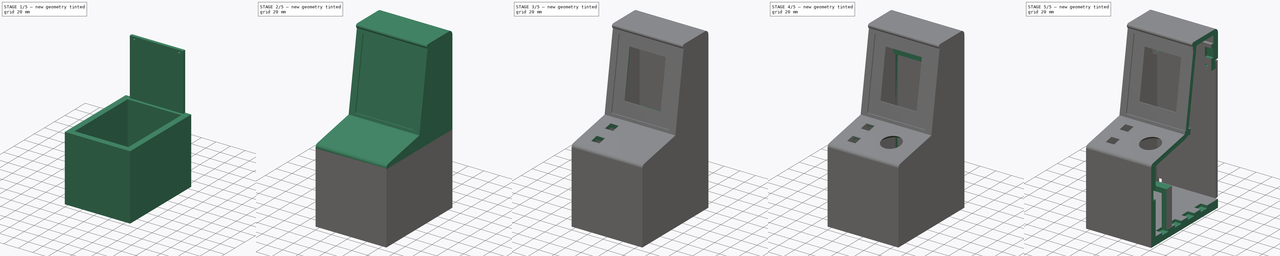
[diagram: build sequence overview — one tinted view per stage of 5, left to right]
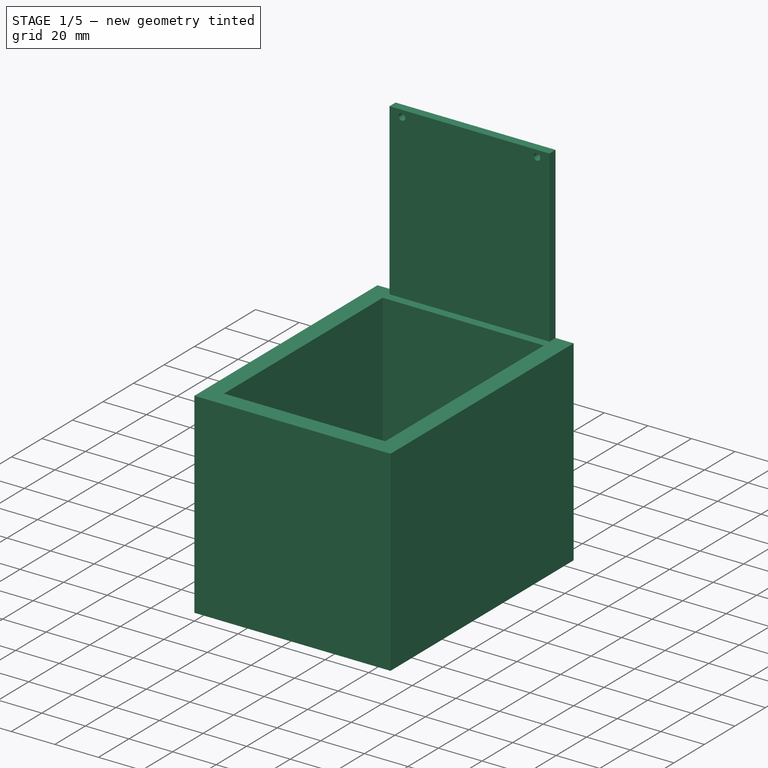
[diagram: stage 1 of 5 — iso view after this stage's code; geometry added in this stage tinted green]
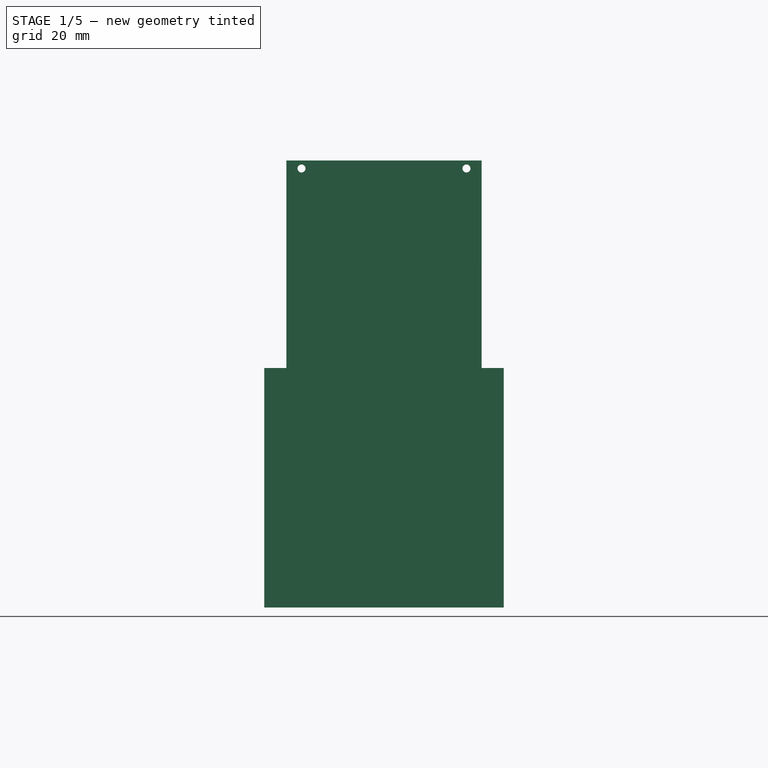
[diagram: stage 1 of 5 — front view after this stage's code; geometry added in this stage tinted green]
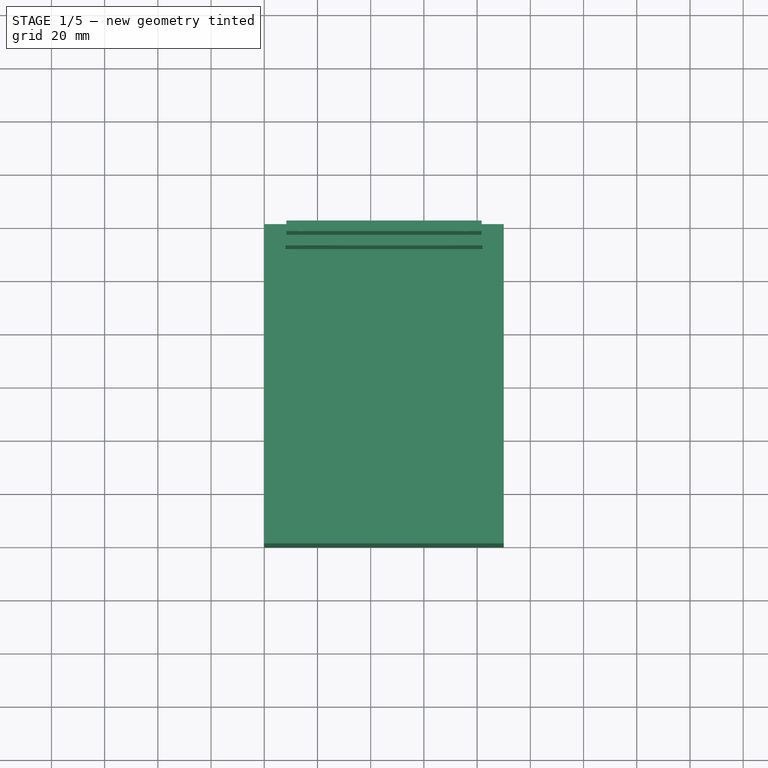
[diagram: stage 1 of 5 — top view after this stage's code; geometry added in this stage tinted green]
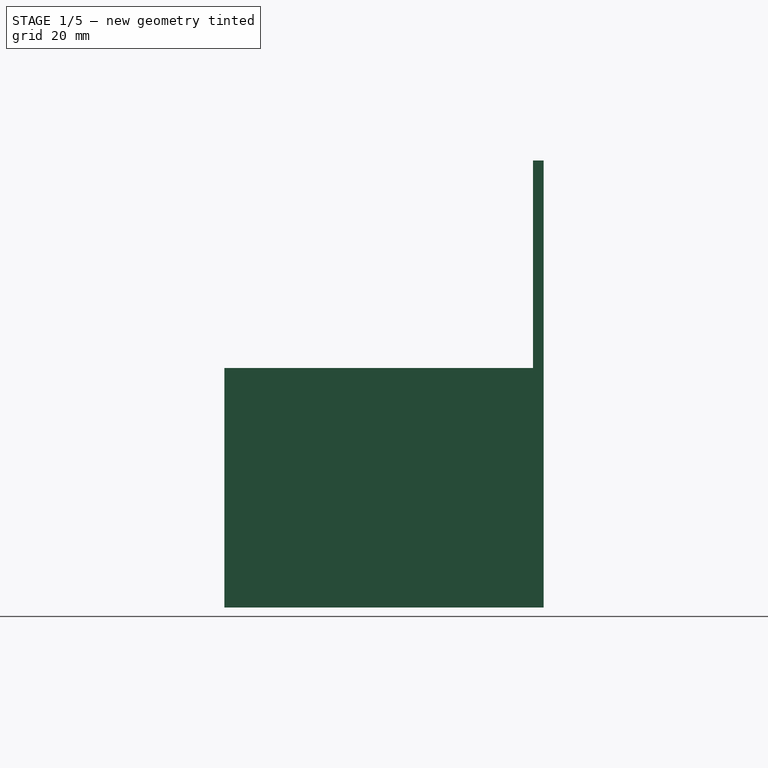
[diagram: stage 1 of 5 — right view after this stage's code; geometry added in this stage tinted green]
FCSTD DOCUMENT  (FreeCAD 0.21R33771 (Git))
Label: ArcadeMachineBaseModel
License: All rights reserved
LicenseURL: https://en.wikipedia.org/wiki/All_rights_reserved
objects: Sketcher::SketchObject×24, PartDesign::Pocket×16, PartDesign::Pad×7, PartDesign::Body×3, PartDesign::Plane×2, Spreadsheet::Sheet×1
note: 75 computed .brp shape members not serialized (recipe doc carries the construction recipe); baked Part::Feature solids carry a one-line shape summary decoded from their .brp

FEATURE [Spreadsheet::Sheet] Spreadsheet
  cells = A2='Base; B2='Value; C2='Offset; A3='Width; B3(BaseWidth)==58 + C3 + SupportBaseWidth * 2; C3=4; A4='Length; B4(BaseLength)==92 + C4; C4=12; A5='Height; B5(BaseHeight)=10; E5=0; A6='Wall; A7='Width; B7(WallWidth)=8; A8='Height; B8(WallHeight)=80; A9='Support; A10='BaseWidth; B10(SupportBaseWidth)=6; A11='BaseLength; B11(SupportBaseLength)=10; A12='TopHeight; B12(SupportTopHeight)=6; A13='Offset; B13(SupportOffset)=0.4; A14='Height; B14(SupportHeight)=40; A18='Parts; A19='Lenght; B19(PartsLength)==BaseLength * 1 / 2; A20='SecondTopLength; B20(PartsSecondTopLength)==BaseLength - PartsLength + WallWidth - 15; A21='SlideHeight; B21(PartsSlideHeight)=10; A22='TopHeight; B22(PartsTopHeight)=6; A26='Joystick; A27='Level; B27(JoyStickLevel)=20; A28='Diameter; B28(JoystickDiameter)=24; A30='Screen; A31='Width; B31(ScreenWidth)=56.4; A32='Height; B32(ScreenHeight)=86; A33='Length; B33(ScreenLength)=5.5; A34='BottomLength; B34(ScreenBottomLength)=1.5; A35='TopOffset; B35(ScreenTopOffset)=8.1; A36='BaseHeight; B36(ScreenBaseHeight)=73.2; A37='BaseWidth; B37(ScreenBaseWidth)=50; A38='RealWidth; B38(ScreenRealWidth)=46; A39='RealLength; B39(ScreenRealLength)=60; A40='RealOffset; B40(ScreenRealOffset)=2.2; A41='Offset; B41(ScreenOffset)=0.3; A42='FromWall; B42(ScreenFromWall)=10; A45='ScreenSupport; A46='Width; B46(ScreenSupportWidth)=4; A47='Height; B47(ScreenSupportHeight)=6; A49='Button; A50='Width; B50(ButtonWidth)=12; A51='TopHeight; B51(ButtonTopHeight)==2 - ButtonOffset; A52='Height; B52(BorderHeight)=3; A53='Border; B53(ButtonBorder)=1; A54='Offset; B54(ButtonOffset)=0.2; A55='PinOffset; B55(ButtonPinOffset)=3; A56='Lower; A57='SideOffset; B57(LowerSideOffset)=15; A58='Bolts; A59='Diameter; B59(BoltsDiameter)=3
FEATURE [Sketcher::SketchObject] Sketch001
  FullyConstrained = true
  MapMode = 5
  Support = -> [XY_Plane]
  expr: Constraints[12] = Spreadsheet.BaseLength
  expr: Constraints[17] = Spreadsheet.WallWidth
  expr: Constraints[19] = Spreadsheet.WallWidth
  expr: Constraints[21] = Spreadsheet.WallWidth
  expr: Constraints[22] = Spreadsheet.WallWidth
  expr: Constraints[2] = Spreadsheet.BaseWidth
  sketch-geometry (8):
    g0: LineSegment StartX=0 StartY=0 StartZ=0 EndX=90 EndY=0 EndZ=0
    g1: LineSegment StartX=8 StartY=-8 StartZ=0 EndX=82 EndY=-8 EndZ=0
    g2: LineSegment StartX=8 StartY=-8 StartZ=0 EndX=8 EndY=-112 EndZ=0
    g3: LineSegment StartX=82 StartY=-8 StartZ=0 EndX=82 EndY=-112 EndZ=0
    g4: LineSegment StartX=8 StartY=-112 StartZ=0 EndX=82 EndY=-112 EndZ=0
    g5: LineSegment StartX=0 StartY=0 StartZ=0 EndX=0 EndY=-120 EndZ=0
    g6: LineSegment StartX=0 StartY=-120 StartZ=0 EndX=90 EndY=-120 EndZ=0
    g7: LineSegment StartX=90 StartY=0 StartZ=0 EndX=90 EndY=-120 EndZ=0
  constraints (23):
    c: Horizontal(g0)
    c: Horizontal(g1)
    c: DistanceX(g1,g1) = 74
    c: Coincident(g2,g1)
    c: Vertical(g2)
    c: Coincident(g3,g1)
    c: Vertical(g3)
    c: Coincident(g4,g2)
    c: Coincident(g4,g3)
    c: Horizontal(g4)
    c: Coincident(g5,g0)
    c: Vertical(g5)
    c: DistanceY(g3,g3) = 104
    c: Horizontal(g6)
    c: Coincident(g7,g0)
    c: Coincident(g7,g6)
    c: Vertical(g7)
    c: Distance(g2,g6) = 8
    c: Coincident(g5,g6)
    c: Distance(g1,g7) = 8
    c: Coincident(g-1,g0)
    c: Distance(g1,g0) = 8
    c: Distance(g1,g5) = 8
FEATURE [PartDesign::Pad] Pad  label="Base"
  Direction = (0,0,1)
  Length = 10
  Length2 = 10
  Profile = -> Sketch001
  ReferenceAxis = -> Sketch001 [N_Axis]
  Type = 0
  expr: Length = Spreadsheet.BaseHeight
FEATURE [Sketcher::SketchObject] Sketch
  FullyConstrained = true
  MapMode = 5
  Placement = pos=(0,0,10) rot=(0,0,1;0rad)
  Support = -> [Pad]
  expr: Constraints[17] = Spreadsheet.WallWidth
  expr: Constraints[18] = Spreadsheet.BaseWidth
  expr: Constraints[19] = Spreadsheet.WallWidth
  expr: Constraints[20] = Spreadsheet.WallWidth
  expr: Constraints[21] = Spreadsheet.BaseLength
  expr: Constraints[22] = Spreadsheet.WallWidth
  sketch-geometry (8):
    g0: LineSegment StartX=0 StartY=0 StartZ=0 EndX=90 EndY=0 EndZ=0
    g1: LineSegment StartX=90 StartY=0 StartZ=0 EndX=90 EndY=-120 EndZ=0
    g2: LineSegment StartX=90 StartY=-120 StartZ=0 EndX=0 EndY=-120 EndZ=0
    g3: LineSegment StartX=0 StartY=-120 StartZ=0 EndX=0 EndY=0 EndZ=0
    g4: LineSegment StartX=8 StartY=-8 StartZ=0 EndX=82 EndY=-8 EndZ=0
    g5: LineSegment StartX=82 StartY=-8 StartZ=0 EndX=82 EndY=-112 EndZ=0
    g6: LineSegment StartX=82 StartY=-112 StartZ=0 EndX=8 EndY=-112 EndZ=0
    g7: LineSegment StartX=8 StartY=-112 StartZ=0 EndX=8 EndY=-8 EndZ=0
  constraints (23):
    c: Coincident(g0,g1)
    c: Coincident(g1,g2)
    c: Coincident(g2,g3)
    c: Coincident(g3,g0)
    c: Horizontal(g0)
    c: Horizontal(g2)
    c: Vertical(g1)
    c: Vertical(g3)
    c: Coincident(g0,g-1)
    c: Coincident(g4,g5)
    c: Coincident(g5,g6)
    c: Coincident(g6,g7)
    c: Coincident(g7,g4)
    c: Horizontal(g4)
    c: Horizontal(g6)
    c: Vertical(g5)
    c: Vertical(g7)
    c: Distance(g4,g0) = 8
    c: DistanceX(g4,g4) = 74
    c: Distance(g4,g3) = 8
    c: Distance(g4,g1) = 8
    c: DistanceY(g7,g7) = 104
    c: Distance(g6,g2) = 8
FEATURE [PartDesign::Pad] Pad001  label="Walls"
  BaseFeature = -> Pad
  Direction = (0,0,1)
  Length = 80
  Length2 = 10
  Profile = -> Sketch
  ReferenceAxis = -> Sketch [N_Axis]
  Type = 0
  expr: Length = Spreadsheet.WallHeight
FEATURE [PartDesign::Body] Body
  Group = -> [Sketch001,Pad,Sketch,Pad001,Sketch004,Pad003,Sketch005,Pocket,Sketch009,Pad006,Sketch010,Pocket001,DatumPlane,Sketch014,Pocket002,Sketch015,Pocket003,Sketch017,Pocket004,DatumPlane001,Sketch018,Pocket005,Sketch019,Pocket006,Sketch020,Pocket007,Sketch021,Pocket008,Sketch023,Sketch024,Pocket009,Sketch025,Pad007,Sketch026,Pocket010,Sketch027,Pocket011,Sketch028,Pocket012,Sketch029,Pocket013]
  Origin = -> Origin
  Tip = -> Pocket013
FEATURE [Sketcher::SketchObject] Sketch030
  FullyConstrained = true
  MapMode = 5
  Placement = pos=(0,0,0) rot=(1,0,0;1.5708rad)
  Support = -> [XZ_Plane002]
  expr: Constraints[10] = Spreadsheet.BaseWidth - 0.6
  expr: Constraints[11] = Spreadsheet.BaseHeight + Spreadsheet.WallHeight * 2 - 2
  expr: Constraints[8] = Spreadsheet.BaseHeight + 2
  expr: Constraints[9] = Spreadsheet.WallWidth + 0.3
  sketch-geometry (4):
    g0: LineSegment StartX=81.7 StartY=168 StartZ=0 EndX=8.3 EndY=168 EndZ=0
    g1: LineSegment StartX=8.3 StartY=168 StartZ=0 EndX=8.3 EndY=12 EndZ=0
    g2: LineSegment StartX=8.3 StartY=12 StartZ=0 EndX=81.7 EndY=12 EndZ=0
    g3: LineSegment StartX=81.7 StartY=12 StartZ=0 EndX=81.7 EndY=168 EndZ=0
  constraints (12):
    c: Coincident(g0,g1)
    c: Coincident(g1,g2)
    c: Coincident(g2,g3)
    c: Coincident(g3,g0)
    c: Horizontal(g0)
    c: Horizontal(g2)
    c: Vertical(g1)
    c: Vertical(g3)
    c: DistanceY(g-1,g1) = 12
    c: DistanceX(g-2,g1) = 8.3
    c: DistanceX(g2,g2) = 73.4
    c: Distance(g0,g-1) = 168
FEATURE [PartDesign::Pad] Pad008
  Direction = (0,-1,2e-16)
  Length = 4
  Length2 = 10
  Placement = pos=(0,0,0) rot=(1,0,0;1.5708rad)
  Profile = -> Sketch030
  ReferenceAxis = -> Sketch030 [N_Axis]
  Type = 0
FEATURE [Sketcher::SketchObject] Sketch031
  FullyConstrained = true
  MapMode = 5
  Placement = pos=(0,2e-16,0) rot=(-1,0,0;1.5708rad)
  Support = -> [Pad008]
  expr: Constraints[0] = Spreadsheet.WallWidth + 6
  expr: Constraints[6] = -(Spreadsheet.BaseHeight + Spreadsheet.WallHeight * 2 - 5)
  expr: Constraints[7] = Spreadsheet.BaseWidth + Spreadsheet.WallWidth
  sketch-geometry (5):
    g0: Circle CenterX=14 CenterY=-165 CenterZ=0 NormalX=0 NormalY=0 NormalZ=1 AngleXU=0 Radius=1.5
    g1: Circle CenterX=76 CenterY=-165 CenterZ=0 NormalX=0 NormalY=0 NormalZ=1 AngleXU=0 Radius=1.5
    g2: LineSegment StartX=76 StartY=-165 StartZ=0 EndX=14 EndY=-165 EndZ=0
    g3: GeomPoint X=82 Y=-165 Z=0
    g4: LineSegment StartX=82 StartY=-165 StartZ=0 EndX=76 EndY=-165 EndZ=0
  constraints (12):
    c: DistanceX(g-2,g0) = 14
    c: Diameter(g0) = 3
    c: Diameter(g1) = 3
    c: Coincident(g2,g1)
    c: Coincident(g2,g0)
    c: Horizontal(g2)
    c: DistanceY(g-1,g0) = -165
    c: DistanceX(g-2,g3) = 82
    c: Distance(g3,g1) = 6
    c: Coincident(g4,g3)
    c: Coincident(g4,g1)
    c: Horizontal(g4)
FEATURE [PartDesign::Pocket] Pocket014
  BaseFeature = -> Pad008
  Direction = (0,-1,2e-16)
  Length = 4
  Length2 = 5
  Placement = pos=(0,0,0) rot=(1,0,0;1.5708rad)
  Profile = -> Sketch031
  ReferenceAxis = -> Sketch031 [N_Axis]
  Type = 0
FEATURE [Sketcher::SketchObject] Sketch032
  FullyConstrained = true
  MapMode = 5
  Placement = pos=(0,2e-16,0) rot=(-1,0,0;1.5708rad)
  Support = -> [Pocket014]
  expr: Constraints[10] = Spreadsheet.WallWidth + 6
  expr: Constraints[9] = Spreadsheet.BaseHeight + 6
  sketch-geometry (4):
    g0: LineSegment StartX=14 StartY=-16 StartZ=0 EndX=0 EndY=-16 EndZ=0
    g1: LineSegment StartX=0 StartY=-16 StartZ=0 EndX=0 EndY=0 EndZ=0
    g2: LineSegment StartX=0 StartY=0 StartZ=0 EndX=14 EndY=0 EndZ=0
    g3: LineSegment StartX=14 StartY=0 StartZ=0 EndX=14 EndY=-16 EndZ=0
  constraints (11):
    c: Coincident(g0,g1)
    c: Coincident(g1,g2)
    c: Coincident(g2,g3)
    c: Coincident(g3,g0)
    c: Horizontal(g0)
    c: Horizontal(g2)
    c: Vertical(g1)
    c: Vertical(g3)
    c: Coincident(g1,g-1)
    c: DistanceY(g1,g1) = 16
    c: DistanceX(g2,g2) = 14
FEATURE [PartDesign::Pocket] Pocket015
  BaseFeature = -> Pocket014
  Direction = (0,-1,4e-16)
  Length = 5
  Length2 = 5
  Placement = pos=(0,0,0) rot=(1,0,0;1.5708rad)
  Profile = -> Sketch032
  ReferenceAxis = -> Sketch032 [N_Axis]
  Type = 0
FEATURE [PartDesign::Body] Body002  label="Door"
  Group = -> [Sketch030,Pad008,Sketch031,Pocket014,Sketch032,Pocket015]
  Origin = -> Origin002
  Tip = -> Pocket015
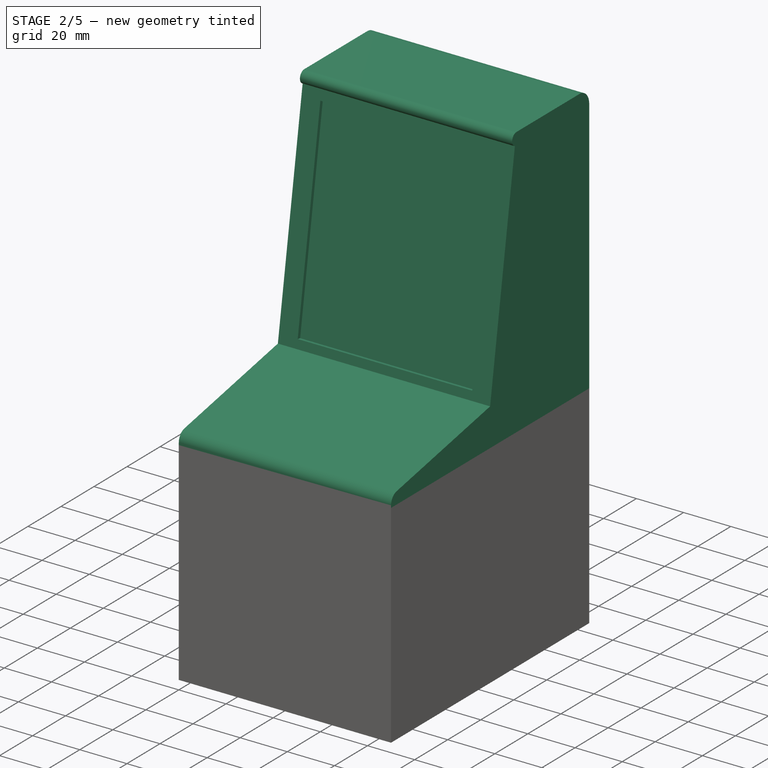
[diagram: stage 2 of 5 — iso view after this stage's code; geometry added in this stage tinted green]
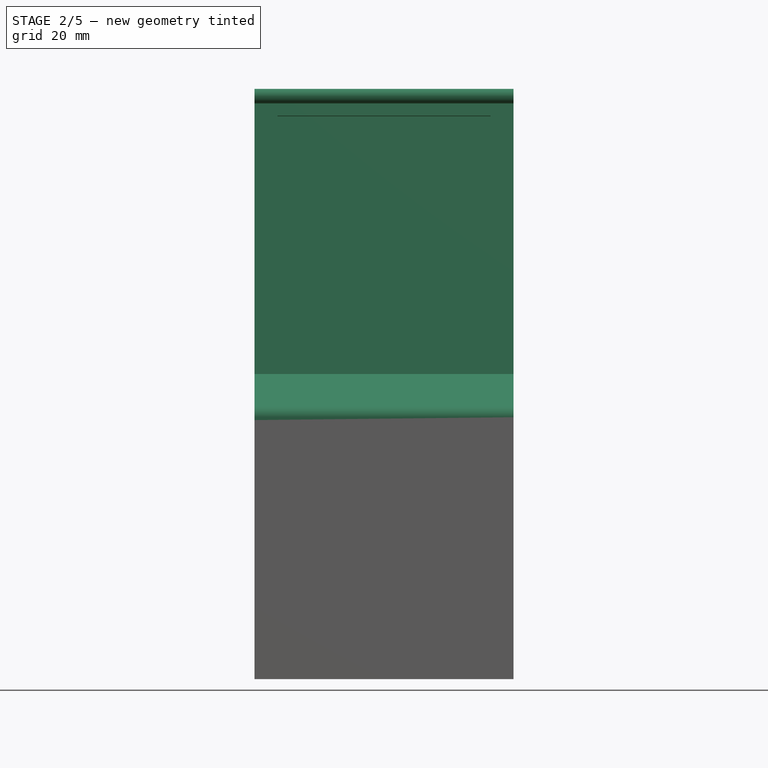
[diagram: stage 2 of 5 — front view after this stage's code; geometry added in this stage tinted green]
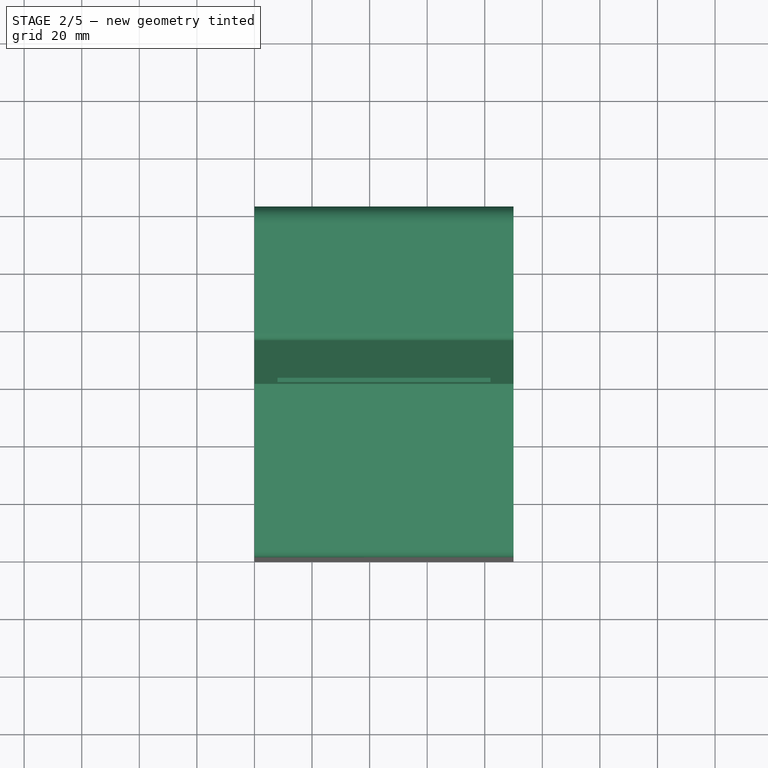
[diagram: stage 2 of 5 — top view after this stage's code; geometry added in this stage tinted green]
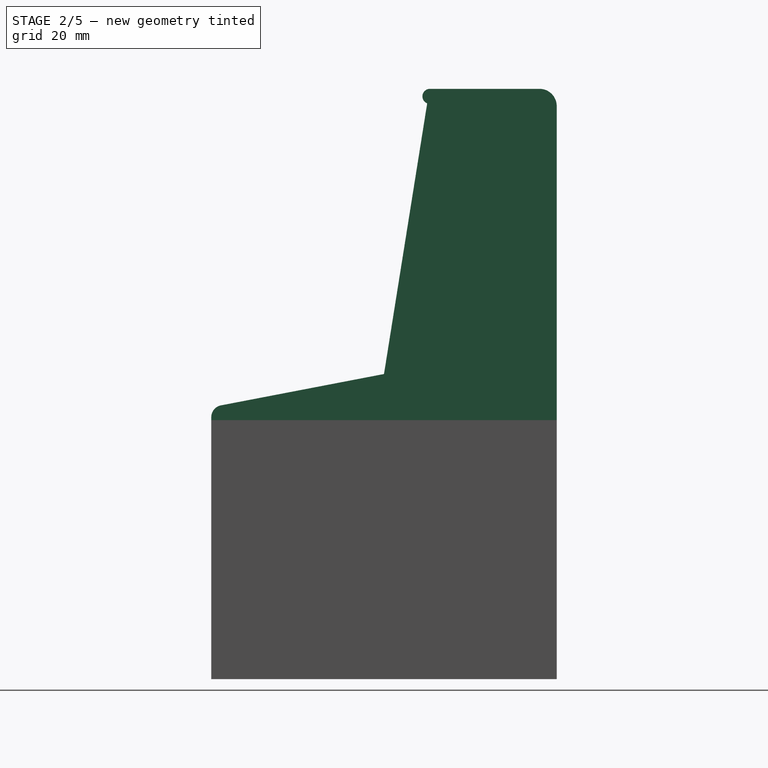
[diagram: stage 2 of 5 — right view after this stage's code; geometry added in this stage tinted green]
FEATURE [Sketcher::SketchObject] Sketch004
  FullyConstrained = true
  MapMode = 5
  Placement = pos=(83,0,0) rot=(0.57735,0.57735,0.57735;2.0944rad)
  expr: Constraints[18] = Spreadsheet.PartsTopHeight
  expr: Constraints[1] = Spreadsheet.BaseHeight + Spreadsheet.WallHeight
  expr: Constraints[21] = Spreadsheet.WallWidth
  expr: Constraints[23] = Spreadsheet.PartsSlideHeight
  expr: Constraints[3] = Spreadsheet.WallWidth * 2 + Spreadsheet.BaseLength
  expr: Constraints[7] = Spreadsheet.WallWidth + Spreadsheet.PartsLength
  sketch-geometry (9):
    g0: GeomPoint X=0 Y=90 Z=0
    g1: LineSegment StartX=-120 StartY=90 StartZ=0 EndX=-60 EndY=90 EndZ=0
    g2: LineSegment StartX=-60 StartY=90 StartZ=0 EndX=0 EndY=90 EndZ=0
    g3: LineSegment StartX=-60 StartY=106 StartZ=0 EndX=-116.601 EndY=95.1152 EndZ=0
    g4: LineSegment StartX=-120 StartY=90 StartZ=0 EndX=-120 EndY=91 EndZ=0
    g5: ArcOfCircle CenterX=-115.809 CenterY=91 CenterZ=0 NormalX=0 NormalY=0 NormalZ=1 AngleXU=0 Radius=4.19065 StartAngle=1.76078 EndAngle=3.14159
    g6: LineSegment StartX=-112 StartY=90 StartZ=0 EndX=-60 EndY=100 EndZ=0
    g7: LineSegment StartX=-60 StartY=90 StartZ=0 EndX=-60 EndY=100 EndZ=0
    g8: LineSegment StartX=-60 StartY=100 StartZ=0 EndX=-60 EndY=106 EndZ=0
  constraints (24):
    c: PointOnObject(g0,g-2)
    c: Distance(g0,g-1) = 90
    c: Coincident(g2,g0)
    c: DistanceX(g1,g2) = 120
    c: Coincident(g1,g2)
    c: Horizontal(g1)
    c: Horizontal(g2)
    c: DistanceX(g1,g1) = 60
    c: Coincident(g7,g1)
    c: Coincident(g4,g1)
    c: Vertical(g4)
    c: Tangent(g4,g5) = 1.5708
    c: Tangent(g3,g5) = -1.5708
    c: Coincident(g3,g8)
    c: Coincident(g7,g8)
    c: Vertical(g7)
    c: Vertical(g8)
    c: Coincident(g7,g6)
    c: DistanceY(g8,g8) = 6
    c: Parallel(g3,g6)
    c: PointOnObject(g6,g1)
    c: Distance(g4,g6) = 8
    c: DistanceY(g4,g4) = 1
    c: DistanceY(g7,g7) = 10
FEATURE [PartDesign::Pad] Pad003  label="FirstPart"
  BaseFeature = -> Pad001
  Direction = (1,0,0)
  Length = 83
  Length2 = 7
  Profile = -> Sketch004
  ReferenceAxis = -> Sketch004 [N_Axis]
  Reversed = true
  Type = 4
  expr: Length = Spreadsheet.BaseWidth + Spreadsheet.WallWidth + 1
  expr: Length2 = Spreadsheet.WallWidth - 1
FEATURE [Sketcher::SketchObject] Sketch005
  FullyConstrained = true
  MapMode = 5
  Placement = pos=(90,0,0) rot=(0.57735,0.57735,0.57735;2.0944rad)
  Support = -> [Pad003]
  expr: Constraints[12] = Spreadsheet.WallWidth
  expr: Constraints[13] = Spreadsheet.PartsLength
  expr: Constraints[14] = Spreadsheet.PartsSlideHeight
  expr: Constraints[5] = Spreadsheet.BaseHeight + Spreadsheet.WallHeight
  expr: Constraints[6] = Spreadsheet.BaseLength + Spreadsheet.WallWidth * 2
  sketch-geometry (5):
    g0: LineSegment StartX=-60 StartY=100 StartZ=0 EndX=-60 EndY=90 EndZ=0
    g1: LineSegment StartX=-60 StartY=90 StartZ=0 EndX=0 EndY=90 EndZ=0
    g2: LineSegment StartX=-112 StartY=90 StartZ=0 EndX=-60 EndY=100 EndZ=0
    g3: LineSegment StartX=-120 StartY=90 StartZ=0 EndX=-112 EndY=90 EndZ=0
    g4: LineSegment StartX=-112 StartY=90 StartZ=0 EndX=-60 EndY=90 EndZ=0
  constraints (15):
    c: Coincident(g0,g4)
    c: Vertical(g0)
    c: Coincident(g1,g4)
    c: PointOnObject(g1,g-2)
    c: Horizontal(g1)
    c: Distance(g1,g-1) = 90
    c: Distance(g3,g1) = 120
    c: Coincident(g2,g0)
    c: Coincident(g3,g4)
    c: Horizontal(g3)
    c: Horizontal(g4)
    c: Coincident(g3,g2)
    c: DistanceX(g3,g3) = 8
    c: DistanceX(g4,g4) = 52
    c: DistanceY(g0,g0) = 10
FEATURE [PartDesign::Pocket] Pocket  label="FirstPartPocket"
  BaseFeature = -> Pad003
  Direction = (-1,0,0)
  Length = 82
  Length2 = -8
  Profile = -> Sketch005
  ReferenceAxis = -> Sketch005 [N_Axis]
  Type = 4
  expr: Length = Spreadsheet.WallWidth + Spreadsheet.BaseWidth
  expr: Length2 = -Spreadsheet.WallWidth
FEATURE [PartDesign::Body] Body001  label="Support"
  Group = -> [Sketch007,Pad005]
  Origin = -> Origin001
  Tip = -> Pad005
FEATURE [Sketcher::SketchObject] Sketch009
  FullyConstrained = true
  MapMode = 5
  Placement = pos=(90,0,0) rot=(0.57735,0.57735,0.57735;2.0944rad)
  Support = -> [Pocket]
  expr: Constraints[14] = Spreadsheet.PartsTopHeight
  expr: Constraints[16] = Spreadsheet.ScreenHeight + Spreadsheet.ScreenOffset * 4 + Spreadsheet.WallWidth
  expr: Constraints[17] = Spreadsheet.PartsTopHeight
  expr: Constraints[18] = Spreadsheet.PartsSecondTopLength
  expr: Constraints[5] = Spreadsheet.BaseHeight + Spreadsheet.WallHeight
  expr: Constraints[6] = Spreadsheet.BaseLength - Spreadsheet.PartsLength + Spreadsheet.WallWidth
  expr: Constraints[7] = Spreadsheet.PartsSlideHeight + Spreadsheet.PartsTopHeight
  sketch-geometry (9):
    g0: LineSegment StartX=-60 StartY=106 StartZ=0 EndX=-60 EndY=90 EndZ=0
    g1: LineSegment StartX=-60 StartY=90 StartZ=0 EndX=0 EndY=90 EndZ=0
    g2: LineSegment StartX=0 StartY=90 StartZ=0 EndX=0 EndY=199.065 EndZ=0
    g3: LineSegment StartX=-60 StartY=106 StartZ=0 EndX=-45 EndY=200.011 EndZ=0
    g4: LineSegment StartX=-39.0749 StartY=205.065 StartZ=0 EndX=-6 EndY=205.065 EndZ=0
    g5: ArcOfCircle CenterX=-39.0749 CenterY=199.065 CenterZ=0 NormalX=0 NormalY=0 NormalZ=1 AngleXU=0 Radius=6 StartAngle=1.5708 EndAngle=2.98337
    g6: ArcOfCircle CenterX=-6 CenterY=199.065 CenterZ=0 NormalX=0 NormalY=0 NormalZ=1 AngleXU=0 Radius=6 StartAngle=2e-15 EndAngle=1.5708
    g7: ArcOfCircle CenterX=-44.0323 CenterY=202.446 CenterZ=0 NormalX=0 NormalY=0 NormalZ=1 AngleXU=0 Radius=2.61995 StartAngle=1.5708 EndAngle=4.33406
    g8: LineSegment StartX=-39.0749 StartY=205.065 StartZ=0 EndX=-44.0323 EndY=205.065 EndZ=0
  constraints (24):
    c: Coincident(g1,g0)
    c: Horizontal(g1)
    c: Coincident(g2,g1)
    c: Vertical(g2)
    c: Vertical(g0)
    c: Distance(g1,g-1) = 90
    c: DistanceX(g1,g1) = 60
    c: DistanceY(g0,g0) = 16
    c: Coincident(g3,g0)
    c: Horizontal(g4)
    c: Tangent(g3,g5) = 1.5708
    c: Tangent(g4,g5) = 1.5708
    c: Tangent(g4,g6) = 1.5708
    c: Tangent(g2,g6) = -1.5708
    c: Distance(g6,g4) = 6
    c: PointOnObject(g2,g-2)
    c: Distance(g3) = 95.2
    c: Distance(g5,g4) = 6
    c: Distance(g3,g-2) = 45
    c: Tangent(g8,g7) = -1.5708
    c: PointOnObject(g7,g5)
    c: Coincident(g7,g3)
    c: Horizontal(g8)
    c: Coincident(g8,g4)
FEATURE [PartDesign::Pad] Pad006  label="SecondPart"
  BaseFeature = -> Pocket
  Direction = (1,0,0)
  Length = -90
  Length2 = 0
  Profile = -> Sketch009
  ReferenceAxis = -> Sketch009 [N_Axis]
  Type = 4
  expr: Length = -(Spreadsheet.WallWidth * 2 + Spreadsheet.BaseWidth)
  expr: Length2 = 0
FEATURE [Sketcher::SketchObject] Sketch010
  FullyConstrained = true
  MapMode = 5
  Placement = pos=(90,0,0) rot=(0.57735,0.57735,0.57735;2.0944rad)
  Support = -> [Pad006]
  expr: Constraints[10] = Spreadsheet.BaseHeight + Spreadsheet.WallHeight
  expr: Constraints[11] = Spreadsheet.BaseLength - Spreadsheet.PartsLength
  expr: Constraints[12] = Spreadsheet.PartsSlideHeight
  expr: Constraints[19] = Spreadsheet.PartsTopHeight
  expr: Constraints[20] = Spreadsheet.PartsSecondTopLength
  expr: Constraints[27] = Spreadsheet.PartsTopHeight + 0.55
  expr: Constraints[32] = Spreadsheet.PartsTopHeight
  expr: Constraints[33] = Spreadsheet.ScreenHeight + Spreadsheet.ScreenOffset * 4 + Spreadsheet.WallWidth
  expr: Constraints[34] = Spreadsheet.PartsTopHeight
  expr: Constraints[41] = Spreadsheet.PartsLength
  expr: Constraints[50] = Spreadsheet.ScreenSupportWidth
  expr: Constraints[51] = Spreadsheet.ScreenSupportHeight
  expr: Constraints[58] = Spreadsheet.WallWidth / 2 - Spreadsheet.ScreenOffset
  expr: Constraints[59] = Spreadsheet.ScreenHeight + Spreadsheet.ScreenOffset * 4
  expr: Constraints[9] = Spreadsheet.WallWidth
  sketch-geometry (37):
    g0: LineSegment StartX=-60 StartY=90 StartZ=0 EndX=-8 EndY=90 EndZ=0
    g1: LineSegment StartX=-8 StartY=90 StartZ=0 EndX=0 EndY=90 EndZ=0
    g2: LineSegment StartX=-60 StartY=90 StartZ=0 EndX=-60 EndY=100 EndZ=0
    g3: LineSegment StartX=-38.518 StartY=199.065 StartZ=0 EndX=-8 EndY=199.065 EndZ=0
    g4: LineSegment StartX=-8 StartY=199.065 StartZ=0 EndX=-8 EndY=90 EndZ=0
    g5: LineSegment StartX=-60 StartY=100 StartZ=0 EndX=-54.1448 EndY=101.126 EndZ=0
    g6: LineSegment StartX=-45 StartY=200.011 StartZ=0 EndX=-60 EndY=106 EndZ=0
    g7: LineSegment StartX=-60 StartY=106 StartZ=0 EndX=-60 EndY=100 EndZ=0
    g8: LineSegment StartX=-45 StartY=200.011 StartZ=0 EndX=0 EndY=200.011 EndZ=0
    g9: LineSegment StartX=-60 StartY=106 StartZ=0 EndX=-91.2 EndY=100 EndZ=0
    g10: LineSegment StartX=-91.2 StartY=100 StartZ=0 EndX=-60 EndY=100 EndZ=0
    g11: LineSegment StartX=-39.0749 StartY=205.065 StartZ=0 EndX=0 EndY=205.065 EndZ=0
    g12: ArcOfCircle CenterX=-39.0749 CenterY=199.065 CenterZ=0 NormalX=0 NormalY=0 NormalZ=1 AngleXU=0 Radius=6 StartAngle=1.5708 EndAngle=2.98337
    g13: LineSegment StartX=-60 StartY=100 StartZ=0 EndX=-112 EndY=90 EndZ=0
    g14: LineSegment StartX=-112 StartY=90 StartZ=0 EndX=-60 EndY=90 EndZ=0
    g15: LineSegment StartX=-53.9062 StartY=102.622 StartZ=0 EndX=-54.1448 EndY=101.126 EndZ=0
    g16: LineSegment StartX=-52.9488 StartY=108.622 StartZ=0 EndX=-48.9488 EndY=107.984 EndZ=0
    g17: LineSegment StartX=-53.9062 StartY=102.622 StartZ=0 EndX=-49.9062 EndY=101.984 EndZ=0
    g18: LineSegment StartX=-49.9062 StartY=101.984 StartZ=0 EndX=-48.9488 EndY=107.984 EndZ=0
    g19: LineSegment StartX=-52.9488 StartY=108.622 StartZ=0 EndX=-53.9062 EndY=102.622 EndZ=0
    g20: LineSegment StartX=-60 StartY=106 StartZ=0 EndX=-53.5318 EndY=104.968 EndZ=0
    g21: GeomPoint X=-39.2093 Y=194.733 Z=0
    g22: LineSegment StartX=-38.518 StartY=199.065 StartZ=0 EndX=-39.2093 EndY=194.733 EndZ=0
    g23: GeomPoint X=-45.6775 Y=195.765 Z=0
    g24: LineSegment StartX=-45.6775 StartY=195.765 StartZ=0 EndX=-59.417 EndY=109.654 EndZ=0
    g25: LineSegment StartX=-60.4045 StartY=109.811 StartZ=0 EndX=-46.665 EndY=195.922 EndZ=0
    g26: LineSegment StartX=-45.6775 StartY=195.765 StartZ=0 EndX=-46.665 EndY=195.922 EndZ=0
    g27: LineSegment StartX=-60.4045 StartY=109.811 StartZ=0 EndX=-59.417 EndY=109.654 EndZ=0
    g28: LineSegment StartX=-45.6775 StartY=195.765 StartZ=0 EndX=-44.1963 EndY=195.528 EndZ=0
    g29: LineSegment StartX=-44.1963 StartY=195.528 StartZ=0 EndX=-39.2093 EndY=194.733 EndZ=0
    g30: LineSegment StartX=-59.417 StartY=109.654 StartZ=0 EndX=-57.9358 EndY=109.417 EndZ=0
    g31: LineSegment StartX=-57.9358 StartY=109.417 StartZ=0 EndX=-52.9488 EndY=108.622 EndZ=0
    g32: LineSegment StartX=-44.1963 StartY=195.528 StartZ=0 EndX=-57.9358 EndY=109.417 EndZ=0
    g33: LineSegment StartX=-39.2093 StartY=194.733 StartZ=0 EndX=-52.7913 EndY=109.609 EndZ=0
    g34: LineSegment StartX=-52.7913 StartY=109.609 StartZ=0 EndX=-52.9488 EndY=108.622 EndZ=0
    g35: LineSegment StartX=-52.7913 StartY=109.609 StartZ=0 EndX=-48.7913 EndY=108.971 EndZ=0
    g36: LineSegment StartX=-48.7913 StartY=108.971 StartZ=0 EndX=-48.9488 EndY=107.984 EndZ=0
  constraints (99):
    c: Horizontal(g0)
    c: Coincident(g1,g0)
    c: PointOnObject(g1,g-2)
    c: Horizontal(g1)
    c: Coincident(g2,g0)
    c: Vertical(g2)
    c: Horizontal(g3)
    c: Vertical(g4)
    c: Coincident(g4,g0)
    c: DistanceX(g1,g1) = 8
    c: Distance(g-1,g1) = 90
    c: DistanceX(g0,g0) = 52
    c: DistanceY(g2,g2) = 10
    c: Coincident(g5,g2)
    c: Coincident(g7,g6)
    c: Coincident(g7,g2)
    c: Vertical(g7)
    c: PointOnObject(g8,g-2)
    c: Horizontal(g8)
    c: DistanceY(g7,g7) = 6
    c: DistanceX(g8,g8) = 45
    c: Coincident(g5,g15)
    c: Coincident(g9,g6)
    c: Coincident(g10,g9)
    c: Coincident(g10,g2)
    c: Horizontal(g10)
    c: Parallel(g9,g5)
    c: Distance(g22,g6) = 6.55
    c: Horizontal(g11)
    c: Tangent(g6,g12) = -1.5708
    c: Tangent(g11,g12) = 1.5708
    c: Coincident(g8,g6)
    c: Distance(g12,g11) = 6
    c: Distance(g6) = 95.2
    c: Distance(g3,g11) = 6
    c: Coincident(g22,g3)
    c: Coincident(g3,g4)
    c: Coincident(g13,g2)
    c: Coincident(g14,g13)
    c: Coincident(g14,g0)
    c: Horizontal(g14)
    c: DistanceX(g14,g14) = 52
    c: Parallel(g9,g13)
    c: Parallel(g6,g15)
    c: Coincident(g16,g34)
    c: Coincident(g17,g15)
    c: Coincident(g18,g17)
    c: Coincident(g18,g16)
    c: Parallel(g16,g17)
    c: Parallel(g18,g6)
    c: DistanceX(g16,g16) = 4
    c: DistanceY(g18,g18) = 6
    c: Coincident(g19,g34)
    c: Coincident(g19,g15)
    c: Parallel(g19,g6)
    c: Coincident(g20,g6)
    c: PointOnObject(g20,g19)
    c: Parallel(g20,g17)
    c: Distance(g34,g20) = 3.7
    c: Distance(g21,g34) = 87.2
    c: Coincident(g22,g33)
    c: Parallel(g6,g22)
    c: Perpendicular(g22,g16)
    c: Coincident(g22,g21)
    c: PointOnObject(g24,g6)
    c: PointOnObject(g23,g6)
    c: Coincident(g28,g23)
    c: Coincident(g29,g22)
    c: Coincident(g24,g28)
    c: Coincident(g26,g28)
    c: Coincident(g26,g25)
    c: Coincident(g31,g16)
    c: Coincident(g24,g30)
    c: Coincident(g27,g25)
    c: Coincident(g27,g30)
    c: Parallel(g27,g16)
    c: Coincident(g28,g29)
    c: Parallel(g26,g28)
    c: Parallel(g26,g29)
    c: Parallel(g28,g16)
    c: Distance(g26) = 1
    c: Distance(g27) = 1
    c: Coincident(g30,g31)
    c: Parallel(g30,g27)
    c: Parallel(g31,g27)
    c: Distance(g30) = 1.5
    c: Distance(g28) = 1.5
    c: Coincident(g32,g28)
    c: Coincident(g32,g30)
    c: PointOnObject(g11,g-2)
    c: Coincident(g33,g34)
    c: Parallel(g6,g33)
    c: Parallel(g6,g34)
    c: Distance(g34) = 1
    c: Coincident(g35,g33)
    c: Coincident(g36,g35)
    c: Coincident(g36,g18)
    c: Parallel(g17,g35)
    c: Parallel(g36,g18)
FEATURE [PartDesign::Pocket] Pocket001  label="SecondPartPocket"
  BaseFeature = -> Pad006
  Direction = (-1,0,0)
  Length = 82
  Length2 = -8
  Profile = -> Sketch010
  ReferenceAxis = -> Sketch010 [N_Axis]
  Type = 4
  expr: Length = Spreadsheet.BaseWidth + Spreadsheet.WallWidth
  expr: Length2 = -Spreadsheet.WallWidth
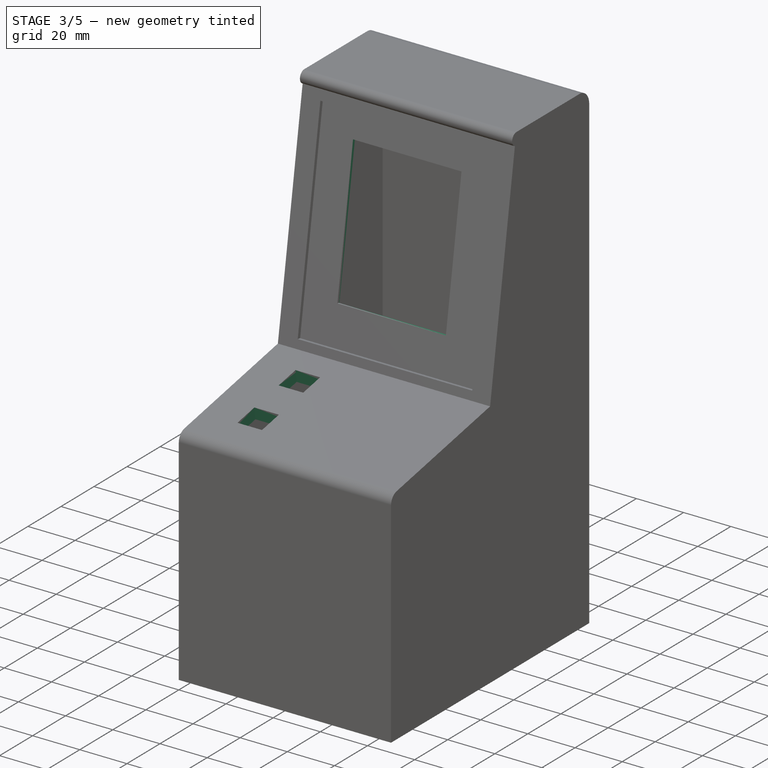
[diagram: stage 3 of 5 — iso view after this stage's code; geometry added in this stage tinted green]
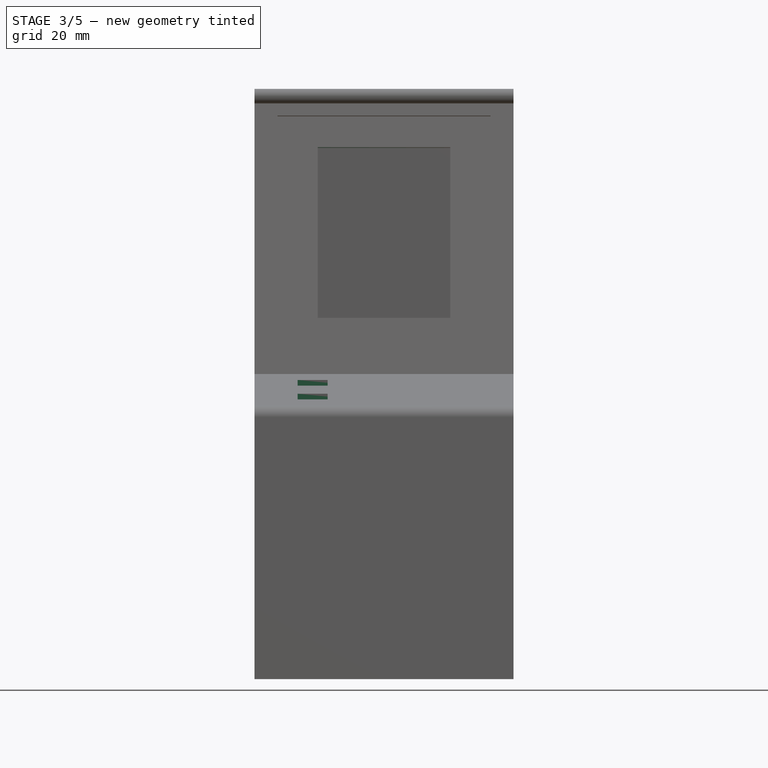
[diagram: stage 3 of 5 — front view after this stage's code; geometry added in this stage tinted green]
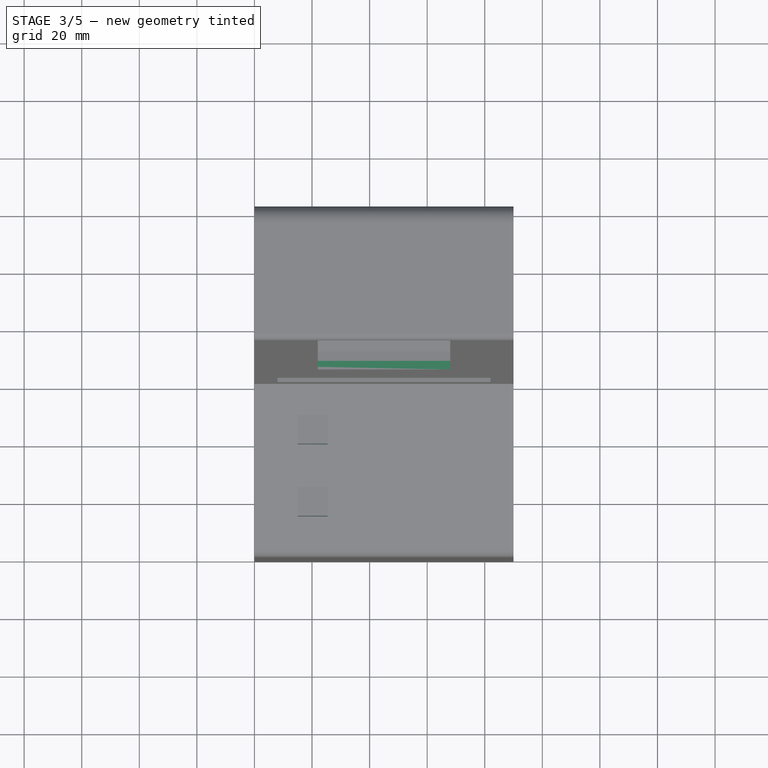
[diagram: stage 3 of 5 — top view after this stage's code; geometry added in this stage tinted green]
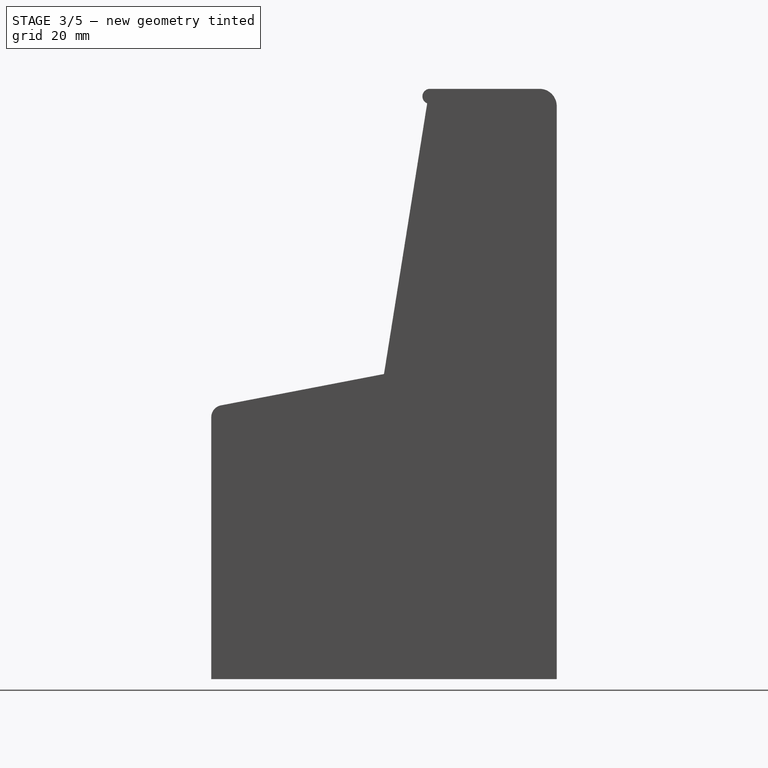
[diagram: stage 3 of 5 — right view after this stage's code; geometry added in this stage tinted green]
FEATURE [PartDesign::Plane] DatumPlane
  Length = 139.713
  MapMode = 45
  Placement = pos=(45,-51.0949,152.477) rot=(-1,0,0;1.72902rad)
  ResizeMode = 0
  Support = -> [Pocket001]
  Width = 282.752
FEATURE [Sketcher::SketchObject] Sketch014
  FullyConstrained = true
  MapMode = 5
  Placement = pos=(45,-51.0949,152.477) rot=(-1,0,0;1.72902rad)
  Support = -> [DatumPlane]
  expr: Constraints[1] = Spreadsheet.BaseWidth / 2
  expr: Constraints[24] = Spreadsheet.ScreenHeight + 4 * Spreadsheet.ScreenOffset
  expr: Constraints[25] = Spreadsheet.ScreenRealOffset + Spreadsheet.ScreenOffset
  expr: Constraints[26] = Spreadsheet.ScreenWidth + 3 * Spreadsheet.ScreenOffset
  expr: Constraints[34] = Spreadsheet.ScreenRealOffset + Spreadsheet.ScreenOffset
  expr: Constraints[35] = Spreadsheet.ScreenRealOffset + Spreadsheet.ScreenOffset
  expr: Constraints[36] = Spreadsheet.ScreenBaseHeight + Spreadsheet.ScreenOffset * 2
  expr: Constraints[37] = Spreadsheet.ScreenTopOffset + Spreadsheet.ScreenOffset
  expr: Constraints[39] = 2.7
  expr: Constraints[3] = Spreadsheet.BaseWidth / 2
  expr: Constraints[40] = Spreadsheet.ScreenRealWidth / 2
  expr: Constraints[41] = Spreadsheet.ScreenRealWidth / 2
  expr: Constraints[42] = Spreadsheet.ScreenRealLength / 2
  expr: Constraints[43] = Spreadsheet.ScreenRealLength / 2
  expr: Constraints[6] = Spreadsheet.ScreenHeight / 2 + Spreadsheet.ScreenOffset * 2
  expr: Constraints[7] = Spreadsheet.ScreenHeight / 2 + Spreadsheet.ScreenOffset * 2
  sketch-geometry (16):
    g0: GeomPoint X=37 Y=0 Z=0
    g1: GeomPoint X=-37 Y=0 Z=0
    g2: GeomPoint X=0 Y=43.6 Z=0
    g3: GeomPoint X=0 Y=-43.6 Z=0
    g4: LineSegment StartX=-23 StartY=-32.7 StartZ=0 EndX=23 EndY=-32.7 EndZ=0
    g5: LineSegment StartX=23 StartY=-32.7 StartZ=0 EndX=23 EndY=27.3 EndZ=0
    g6: LineSegment StartX=23 StartY=27.3 StartZ=0 EndX=-23 EndY=27.3 EndZ=0
    g7: LineSegment StartX=-23 StartY=27.3 StartZ=0 EndX=-23 EndY=-32.7 EndZ=0
    g8: LineSegment StartX=-25.5 StartY=43.6 StartZ=0 EndX=31.8 EndY=43.6 EndZ=0
    g9: LineSegment StartX=-25.5 StartY=-43.6 StartZ=0 EndX=31.8 EndY=-43.6 EndZ=0
    g10: LineSegment StartX=31.8 StartY=-43.6 StartZ=0 EndX=31.8 EndY=43.6 EndZ=0
    g11: LineSegment StartX=-25.5 StartY=-43.6 StartZ=0 EndX=-25.5 EndY=43.6 EndZ=0
    g12: LineSegment StartX=-25.5 StartY=-35.2 StartZ=0 EndX=25.5 EndY=-35.2 EndZ=0
    g13: LineSegment StartX=25.5 StartY=-35.2 StartZ=0 EndX=25.5 EndY=38.6 EndZ=0
    g14: LineSegment StartX=25.5 StartY=38.6 StartZ=0 EndX=-25.5 EndY=38.6 EndZ=0
    g15: GeomPoint X=0 Y=-2.7 Z=0
  constraints (44):
    c: PointOnObject(g0,g-1)
    c: Distance(g-1,g0) = 37
    c: PointOnObject(g1,g-1)
    c: Distance(g-1,g1) = 37
    c: PointOnObject(g2,g-2)
    c: PointOnObject(g3,g-2)
    c: Distance(g-1,g3) = 43.6
    c: Distance(g-1,g2) = 43.6
    c: Coincident(g4,g5)
    c: Coincident(g5,g6)
    c: Coincident(g6,g7)
    c: Coincident(g7,g4)
    c: Horizontal(g4)
    c: Horizontal(g6)
    c: Vertical(g5)
    c: Vertical(g7)
    c: Horizontal(g8)
    c: Horizontal(g9)
    c: Vertical(g10)
    c: Vertical(g11)
    c: Coincident(g9,g11)
    c: Coincident(g9,g10)
    c: Coincident(g10,g8)
    c: Coincident(g11,g8)
    c: DistanceY(g10,g10) = 87.2
    c: Distance(g4,g11) = 2.5
    c: DistanceX(g9,g9) = 57.3
    c: PointOnObject(g12,g11)
    c: Horizontal(g12)
    c: Coincident(g13,g12)
    c: Vertical(g13)
    c: Coincident(g14,g13)
    c: PointOnObject(g14,g11)
    c: Horizontal(g14)
    c: Distance(g4,g12) = 2.5
    c: Distance(g4,g13) = 2.5
    c: DistanceY(g13,g13) = 73.8
    c: Distance(g12,g9) = 8.4
    c: PointOnObject(g15,g-2)
    c: Distance(g15,g-1) = 2.7
    c: Distance(g15,g7) = 23
    c: Distance(g15,g5) = 23
    c: Distance(g15,g6) = 30
    c: Distance(g15,g4) = 30
FEATURE [PartDesign::Pocket] Pocket002  label="FirstScreenIndent"
  BaseFeature = -> Pocket001
  Direction = (-2e-16,-0.987509,0.157563)
  Length = 1
  Length2 = 2
  Profile = -> Sketch014
  ReferenceAxis = -> Sketch014 [N_Axis]
  Type = 4
FEATURE [Sketcher::SketchObject] Sketch015
  FullyConstrained = true
  MapMode = 5
  Placement = pos=(45,-51.0949,152.477) rot=(-1,0,0;1.72902rad)
  Support = -> [DatumPlane]
  expr: Constraints[10] = Spreadsheet.ScreenRealLength / 2
  expr: Constraints[11] = Spreadsheet.ScreenRealLength / 2
  expr: Constraints[12] = Spreadsheet.ScreenRealWidth / 2
  expr: Constraints[13] = Spreadsheet.ScreenRealWidth / 2
  expr: Constraints[22] = Spreadsheet.ScreenRealOffset + Spreadsheet.ScreenOffset
  expr: Constraints[23] = Spreadsheet.ScreenRealOffset + Spreadsheet.ScreenOffset
  expr: Constraints[24] = Spreadsheet.ScreenRealOffset + Spreadsheet.ScreenOffset
  expr: Constraints[25] = Spreadsheet.ScreenBaseHeight + Spreadsheet.ScreenOffset * 2
  sketch-geometry (9):
    g0: GeomPoint X=0 Y=-2.7 Z=0
    g1: LineSegment StartX=-23 StartY=-32.7 StartZ=0 EndX=23 EndY=-32.7 EndZ=0
    g2: LineSegment StartX=23 StartY=-32.7 StartZ=0 EndX=23 EndY=27.3 EndZ=0
    g3: LineSegment StartX=23 StartY=27.3 StartZ=0 EndX=-23 EndY=27.3 EndZ=0
    g4: LineSegment StartX=-23 StartY=27.3 StartZ=0 EndX=-23 EndY=-32.7 EndZ=0
    g5: LineSegment StartX=-25.5 StartY=-35.2 StartZ=0 EndX=25.5 EndY=-35.2 EndZ=0
    g6: LineSegment StartX=25.5 StartY=-35.2 StartZ=0 EndX=25.5 EndY=38.6 EndZ=0
    g7: LineSegment StartX=25.5 StartY=38.6 StartZ=0 EndX=-25.5 EndY=38.6 EndZ=0
    g8: LineSegment StartX=-25.5 StartY=38.6 StartZ=0 EndX=-25.5 EndY=-35.2 EndZ=0
  constraints (26):
    c: PointOnObject(g0,g-2)
    c: Distance(g-1,g0) = 2.7
    c: Coincident(g1,g2)
    c: Coincident(g2,g3)
    c: Coincident(g3,g4)
    c: Coincident(g4,g1)
    c: Horizontal(g1)
    c: Horizontal(g3)
    c: Vertical(g2)
    c: Vertical(g4)
    c: Distance(g0,g1) = 30
    c: Distance(g0,g3) = 30
    c: Distance(g0,g2) = 23
    c: Distance(g0,g4) = 23
    c: Coincident(g5,g6)
    c: Coincident(g6,g7)
    c: Coincident(g7,g8)
    c: Coincident(g8,g5)
    c: Horizontal(g5)
    c: Horizontal(g7)
    c: Vertical(g6)
    c: Vertical(g8)
    c: Distance(g1,g5) = 2.5
    c: Distance(g1,g6) = 2.5
    c: Distance(g1,g8) = 2.5
    c: DistanceY(g6,g6) = 73.8
FEATURE [PartDesign::Pocket] Pocket003  label="SecondScreenIndent"
  BaseFeature = -> Pocket002
  Direction = (0,0.99,-0.16)
  Length = 7
  Length2 = -1
  Profile = -> Sketch015
  ReferenceAxis = -> Sketch015 [N_Axis]
  Type = 4
  UseCustomVector = true
FEATURE [Sketcher::SketchObject] Sketch017
  FullyConstrained = true
  MapMode = 5
  Placement = pos=(0,0,0) rot=(0.57735,-0.57735,-0.57735;2.0944rad)
  Support = -> [Pad003]
  expr: Constraints[10] = Spreadsheet.BaseLength + Spreadsheet.WallWidth * 2
  expr: Constraints[11] = Spreadsheet.PartsSlideHeight
  expr: Constraints[14] = Spreadsheet.PartsLength
  expr: Constraints[15] = Spreadsheet.PartsTopHeight
  expr: Constraints[34] = 0
  expr: Constraints[8] = Spreadsheet.BaseHeight + Spreadsheet.WallHeight
  expr: Constraints[9] = Spreadsheet.WallWidth
  sketch-geometry (12):
    g0: LineSegment StartX=0 StartY=90 StartZ=0 EndX=112 EndY=90 EndZ=0
    g1: LineSegment StartX=112 StartY=90 StartZ=0 EndX=60 EndY=100 EndZ=0
    g2: LineSegment StartX=60 StartY=100 StartZ=0 EndX=60 EndY=90 EndZ=0
    g3: LineSegment StartX=112 StartY=90 StartZ=0 EndX=120 EndY=90 EndZ=0
    g4: LineSegment StartX=60 StartY=106 StartZ=0 EndX=60 EndY=100 EndZ=0
    g5: LineSegment StartX=60 StartY=106 StartZ=0 EndX=116.601 EndY=95.1152 EndZ=0
    g6: LineSegment StartX=120 StartY=90 StartZ=0 EndX=120 EndY=91 EndZ=0
    g7: ArcOfCircle CenterX=115.809 CenterY=91 CenterZ=0 NormalX=0 NormalY=0 NormalZ=1 AngleXU=0 Radius=4.19065 StartAngle=9e-16 EndAngle=1.38081
    g8: LineSegment StartX=60 StartY=106 StartZ=0 EndX=60.982 EndY=105.811 EndZ=0
    g9: LineSegment StartX=60.1888 StartY=106.982 StartZ=0 EndX=61.1709 EndY=106.793 EndZ=0
    g10: LineSegment StartX=61.1709 StartY=106.793 StartZ=0 EndX=60.982 EndY=105.811 EndZ=0
    g11: LineSegment StartX=60.1888 StartY=106.982 StartZ=0 EndX=60 EndY=106 EndZ=0
  constraints (35):
    c: PointOnObject(g0,g-2)
    c: Horizontal(g0)
    c: Coincident(g1,g0)
    c: Coincident(g2,g1)
    c: PointOnObject(g2,g0)
    c: Vertical(g2)
    c: Coincident(g3,g0)
    c: Horizontal(g3)
    c: Distance(g0,g-1) = 90
    c: DistanceX(g3,g3) = 8
    c: Distance(g0,g3) = 120
    c: DistanceY(g2,g2) = 10
    c: Coincident(g4,g1)
    c: Vertical(g4)
    c: Distance(g2,g0) = 52
    c: DistanceY(g4,g4) = 6
    c: Coincident(g5,g4)
    c: Coincident(g6,g3)
    c: Vertical(g6)
    c: Parallel(g5,g1)
    c: Tangent(g5,g7) = 1.5708
    c: Tangent(g6,g7) = -1.5708
    c: DistanceY(g6,g6) = 1
    c: PointOnObject(g8,g5)
    c: Distance(g8) = 1
    c: Coincident(g10,g9)
    c: Coincident(g10,g8)
    c: Perpendicular(g8,g11)
    c: Perpendicular(g9,g11)
    c: Perpendicular(g10,g9)
    c: Distance(g10) = 1
    c: Coincident(g11,g9)
    c: Coincident(g11,g8)
    c: PointOnObject(g8,g5)
    c: Distance(g8,g4) = 0
FEATURE [PartDesign::Pocket] Pocket004  label="SupportForDatumPlane"
  BaseFeature = -> Pocket003
  Direction = (1,0,0)
  Length = 5
  Length2 = 5
  Profile = -> Sketch017
  ReferenceAxis = -> Sketch017 [N_Axis]
  Type = 0
FEATURE [PartDesign::Plane] DatumPlane001  label="FrontDatumPlane"
  Length = 214.041
  MapMode = 45
  Placement = pos=(45,-88.3004,100.558) rot=(0.094428,-0.094428,0.991043;1.57979rad)
  ResizeMode = 0
  Support = -> [Pocket004]
  Width = 135.203
FEATURE [Sketcher::SketchObject] Sketch018
  FullyConstrained = true
  MapMode = 5
  Placement = pos=(45,-88.3004,100.558) rot=(0.094428,-0.094428,0.991043;1.57979rad)
  Support = -> [DatumPlane001]
  expr: Constraints[23] = Spreadsheet.LowerSideOffset
  expr: Constraints[24] = Spreadsheet.ButtonWidth - Spreadsheet.ButtonBorder * 2 + Spreadsheet.ButtonOffset * 2
  expr: Constraints[25] = Spreadsheet.ButtonWidth - Spreadsheet.ButtonBorder * 2 + Spreadsheet.ButtonOffset * 2
  expr: Constraints[26] = Spreadsheet.ButtonWidth - Spreadsheet.ButtonBorder * 2 + Spreadsheet.ButtonOffset * 2
  expr: Constraints[27] = Spreadsheet.ButtonWidth - Spreadsheet.ButtonBorder * 2 + Spreadsheet.ButtonOffset * 2
  expr: Constraints[28] = Spreadsheet.LowerSideOffset / 2
  expr: Constraints[29] = Spreadsheet.LowerSideOffset / 2
  expr: Constraints[2] = Spreadsheet.BaseWidth / 2 + Spreadsheet.WallWidth
  expr: Constraints[3] = Spreadsheet.BaseWidth / 2 + Spreadsheet.WallWidth
  sketch-geometry (11):
    g0: GeomPoint X=0 Y=45 Z=0
    g1: GeomPoint X=0 Y=-45 Z=0
    g2: LineSegment StartX=17.9 StartY=30 StartZ=0 EndX=7.5 EndY=30 EndZ=0
    g3: LineSegment StartX=7.5 StartY=30 StartZ=0 EndX=7.5 EndY=19.6 EndZ=0
    g4: LineSegment StartX=7.5 StartY=19.6 StartZ=0 EndX=17.9 EndY=19.6 EndZ=0
    g5: LineSegment StartX=17.9 StartY=19.6 StartZ=0 EndX=17.9 EndY=30 EndZ=0
    g6: LineSegment StartX=-7.5 StartY=30 StartZ=0 EndX=-17.9 EndY=30 EndZ=0
    g7: LineSegment StartX=-17.9 StartY=30 StartZ=0 EndX=-17.9 EndY=19.6 EndZ=0
    g8: LineSegment StartX=-17.9 StartY=19.6 StartZ=0 EndX=-7.5 EndY=19.6 EndZ=0
    g9: LineSegment StartX=-7.5 StartY=19.6 StartZ=0 EndX=-7.5 EndY=30 EndZ=0
    g10: LineSegment StartX=7.5 StartY=30 StartZ=0 EndX=-7.5 EndY=30 EndZ=0
  constraints (30):
    c: PointOnObject(g0,g-2)
    c: PointOnObject(g1,g-2)
    c: Distance(g-1,g1) = 45
    c: Distance(g-1,g0) = 45
    c: Coincident(g2,g3)
    c: Coincident(g3,g4)
    c: Coincident(g4,g5)
    c: Coincident(g5,g2)
    c: Horizontal(g2)
    c: Horizontal(g4)
    c: Vertical(g3)
    c: Vertical(g5)
    c: Coincident(g6,g7)
    c: Coincident(g7,g8)
    c: Coincident(g8,g9)
    c: Coincident(g9,g6)
    c: Horizontal(g6)
    c: Horizontal(g8)
    c: Vertical(g7)
    c: Vertical(g9)
    c: Coincident(g10,g2)
    c: Coincident(g10,g6)
    c: Horizontal(g10)
    c: Distance(g0,g10) = 15
    c: DistanceY(g3,g3) = 10.4
    c: DistanceX(g4,g4) = 10.4
    c: DistanceY(g9,g9) = 10.4
    c: DistanceX(g8,g8) = 10.4
    c: Distance(g3,g-2) = 7.5
    c: Distance(g8,g-2) = 7.5
FEATURE [PartDesign::Pocket] Pocket005  label="ButtonHoleOne"
  BaseFeature = -> Pocket004
  Direction = (-1e-16,0.188847,-0.982006)
  Length = 1
  Length2 = 5
  Profile = -> Sketch018
  ReferenceAxis = -> Sketch018 [N_Axis]
  Type = 0
FEATURE [Sketcher::SketchObject] Sketch019
  FullyConstrained = true
  MapMode = 5
  Placement = pos=(45,-88.3004,100.558) rot=(0.094428,-0.094428,0.991043;1.57979rad)
  Support = -> [DatumPlane001]
  expr: Constraints[36] = Spreadsheet.BaseWidth / 2 + Spreadsheet.WallWidth
  expr: Constraints[37] = Spreadsheet.LowerSideOffset
  expr: Constraints[38] = Spreadsheet.LowerSideOffset / 2
  expr: Constraints[39] = Spreadsheet.LowerSideOffset / 2
  expr: Constraints[40] = Spreadsheet.ButtonWidth - Spreadsheet.ButtonBorder * 2 + Spreadsheet.ButtonOffset * 2
  expr: Constraints[41] = Spreadsheet.ButtonWidth - Spreadsheet.ButtonBorder * 2 + Spreadsheet.ButtonOffset * 2
  expr: Constraints[42] = Spreadsheet.ButtonWidth - Spreadsheet.ButtonBorder * 2 + Spreadsheet.ButtonOffset * 2
  expr: Constraints[43] = Spreadsheet.ButtonBorder
  expr: Constraints[44] = Spreadsheet.ButtonBorder
  expr: Constraints[45] = Spreadsheet.ButtonBorder
  expr: Constraints[46] = Spreadsheet.ButtonWidth - Spreadsheet.ButtonBorder * 2 + Spreadsheet.ButtonOffset * 2
  expr: Constraints[47] = Spreadsheet.ButtonBorder
  expr: Constraints[48] = Spreadsheet.ButtonBorder
  expr: Constraints[49] = Spreadsheet.ButtonBorder
  expr: Constraints[50] = Spreadsheet.ButtonBorder
  expr: Constraints[51] = Spreadsheet.ButtonBorder
  sketch-geometry (18):
    g0: LineSegment StartX=17.9 StartY=30 StartZ=0 EndX=7.5 EndY=30 EndZ=0
    g1: LineSegment StartX=7.5 StartY=30 StartZ=0 EndX=7.5 EndY=19.6 EndZ=0
    g2: LineSegment StartX=7.5 StartY=19.6 StartZ=0 EndX=17.9 EndY=19.6 EndZ=0
    g3: LineSegment StartX=17.9 StartY=19.6 StartZ=0 EndX=17.9 EndY=30 EndZ=0
    g4: LineSegment StartX=-7.5 StartY=30 StartZ=0 EndX=-17.9 EndY=30 EndZ=0
    g5: LineSegment StartX=-17.9 StartY=30 StartZ=0 EndX=-17.9 EndY=19.6 EndZ=0
    g6: LineSegment StartX=-17.9 StartY=19.6 StartZ=0 EndX=-7.5 EndY=19.6 EndZ=0
    g7: LineSegment StartX=-7.5 StartY=19.6 StartZ=0 EndX=-7.5 EndY=30 EndZ=0
    g8: LineSegment StartX=-6.5 StartY=31 StartZ=0 EndX=-18.9 EndY=31 EndZ=0
    g9: LineSegment StartX=-18.9 StartY=31 StartZ=0 EndX=-18.9 EndY=18.6 EndZ=0
    g10: LineSegment StartX=-18.9 StartY=18.6 StartZ=0 EndX=-6.5 EndY=18.6 EndZ=0
    g11: LineSegment StartX=-6.5 StartY=18.6 StartZ=0 EndX=-6.5 EndY=31 EndZ=0
    g12: LineSegment StartX=18.9 StartY=31 StartZ=0 EndX=6.5 EndY=31 EndZ=0
    g13: LineSegment StartX=6.5 StartY=31 StartZ=0 EndX=6.5 EndY=18.6 EndZ=0
    g14: LineSegment StartX=6.5 StartY=18.6 StartZ=0 EndX=18.9 EndY=18.6 EndZ=0
    g15: LineSegment StartX=18.9 StartY=18.6 StartZ=0 EndX=18.9 EndY=31 EndZ=0
    g16: LineSegment StartX=7.5 StartY=30 StartZ=0 EndX=-7.5 EndY=30 EndZ=0
    g17: GeomPoint X=0 Y=45 Z=0
  constraints (52):
    c: Coincident(g0,g1)
    c: Coincident(g1,g2)
    c: Coincident(g2,g3)
    c: Coincident(g3,g0)
    c: Horizontal(g0)
    c: Horizontal(g2)
    c: Vertical(g1)
    c: Vertical(g3)
    c: Coincident(g4,g5)
    c: Coincident(g5,g6)
    c: Coincident(g6,g7)
    c: Coincident(g7,g4)
    c: Horizontal(g4)
    c: Horizontal(g6)
    c: Vertical(g5)
    c: Vertical(g7)
    c: Coincident(g8,g9)
    c: Coincident(g9,g10)
    c: Coincident(g10,g11)
    c: Coincident(g11,g8)
    c: Horizontal(g8)
    c: Horizontal(g10)
    c: Vertical(g9)
    c: Vertical(g11)
    c: Coincident(g12,g13)
    c: Coincident(g13,g14)
    c: Coincident(g14,g15)
    c: Coincident(g15,g12)
    c: Horizontal(g12)
    c: Horizontal(g14)
    c: Vertical(g13)
    c: Vertical(g15)
    c: Coincident(g16,g0)
    c: Coincident(g16,g4)
    c: Horizontal(g16)
    c: PointOnObject(g17,g-2)
    c: Distance(g-1,g17) = 45
    c: Distance(g17,g16) = 15
    c: DistanceX(g-2,g1) = 7.5
    c: Distance(g6,g-2) = 7.5
    c: DistanceY(g7,g7) = 10.4
    c: DistanceX(g2,g2) = 10.4
    c: DistanceY(g3,g3) = 10.4
    c: Distance(g4,g11) = 1
    c: Distance(g4,g8) = 1
    c: Distance(g5,g9) = 1
    c: DistanceX(g6,g6) = 10.4
    c: Distance(g6,g10) = 1
    c: Distance(g0,g12) = 1
    c: Distance(g0,g15) = 1
    c: Distance(g2,g14) = 1
    c: Distance(g1,g13) = 1
FEATURE [PartDesign::Pocket] Pocket006  label="ButtonHoleTwo"
  BaseFeature = -> Pocket005
  Direction = (-1e-16,0.188847,-0.982006)
  Length = 1
  Length2 = -7
  Profile = -> Sketch019
  ReferenceAxis = -> Sketch019 [N_Axis]
  Type = 4
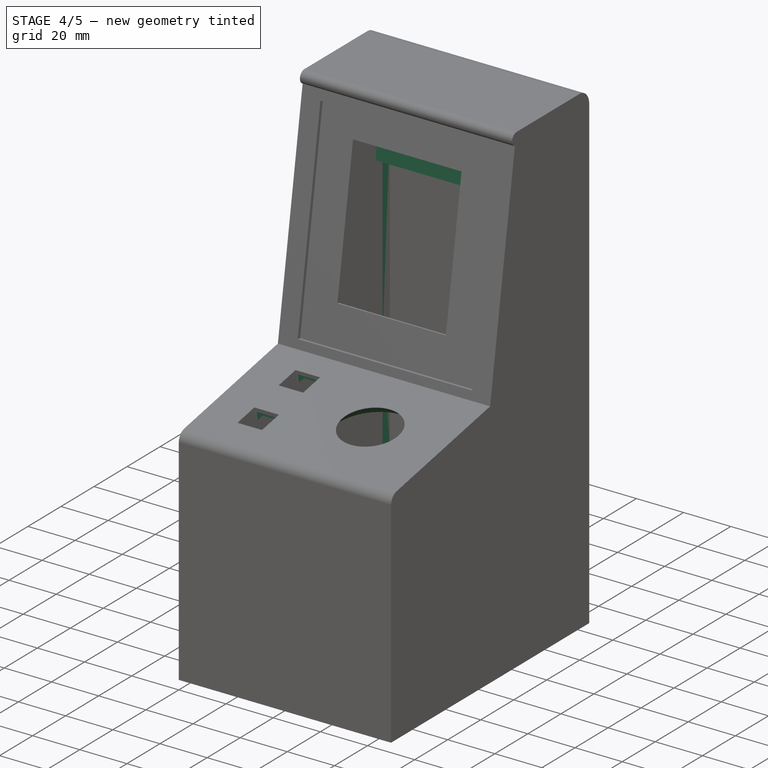
[diagram: stage 4 of 5 — iso view after this stage's code; geometry added in this stage tinted green]
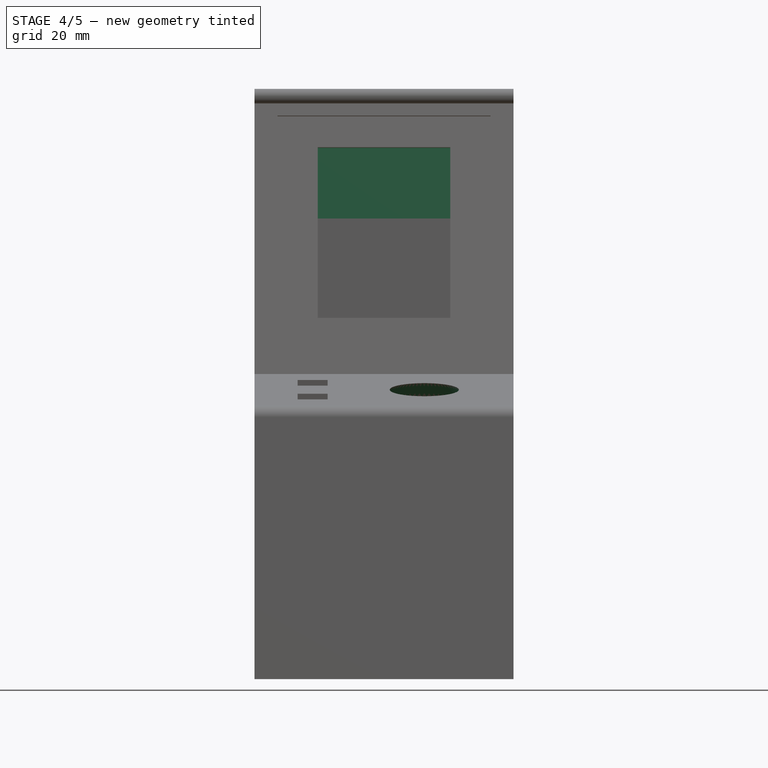
[diagram: stage 4 of 5 — front view after this stage's code; geometry added in this stage tinted green]
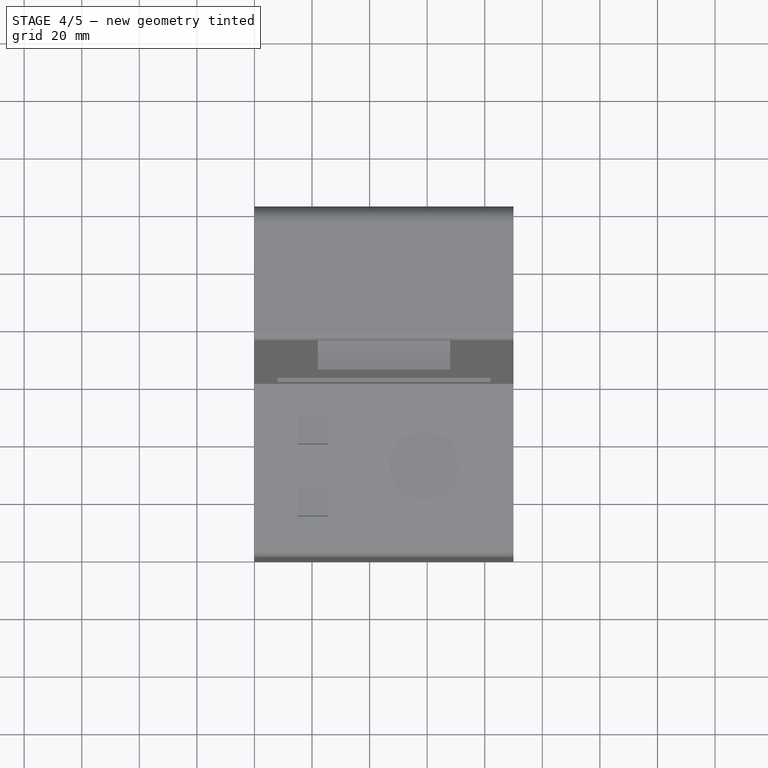
[diagram: stage 4 of 5 — top view after this stage's code; geometry added in this stage tinted green]
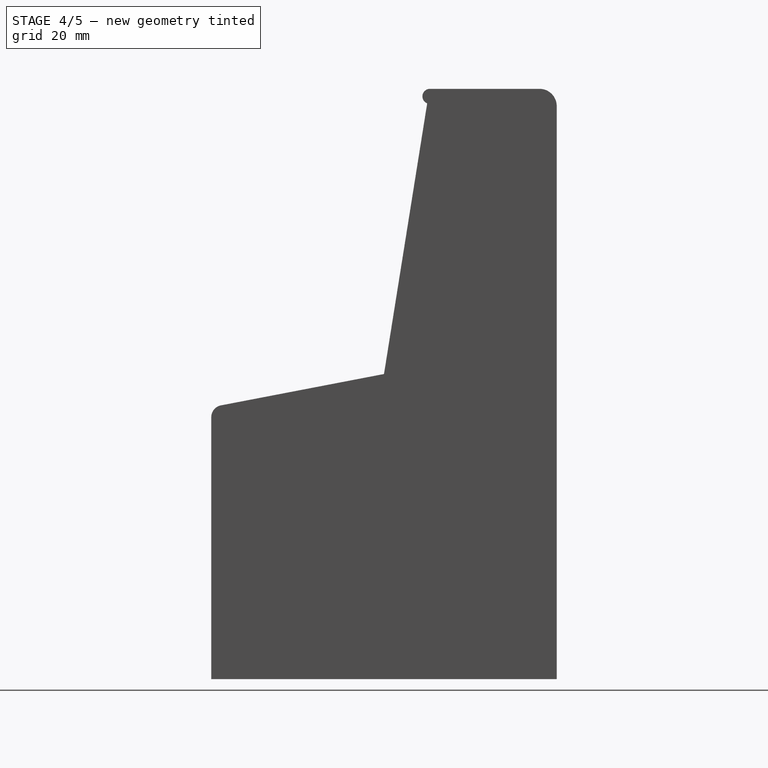
[diagram: stage 4 of 5 — right view after this stage's code; geometry added in this stage tinted green]
FEATURE [Sketcher::SketchObject] Sketch020
  FullyConstrained = true
  MapMode = 5
  Placement = pos=(45,-88.3004,100.558) rot=(0.094428,-0.094428,0.991043;1.57979rad)
  Support = -> [DatumPlane001]
  expr: Constraints[18] = Spreadsheet.ButtonWidth + Spreadsheet.ButtonOffset * 2
  expr: Constraints[19] = Spreadsheet.ButtonWidth + Spreadsheet.ButtonOffset * 2
  expr: Constraints[1] = Spreadsheet.BaseWidth / 2 + Spreadsheet.WallWidth
  expr: Constraints[20] = Spreadsheet.ButtonWidth + Spreadsheet.ButtonOffset * 2
  expr: Constraints[21] = Spreadsheet.ButtonWidth + Spreadsheet.ButtonOffset * 2
  expr: Constraints[25] = Spreadsheet.LowerSideOffset
  expr: Constraints[27] = Spreadsheet.LowerSideOffset / 2
  expr: Constraints[28] = Spreadsheet.LowerSideOffset / 2
  expr: Constraints[29] = Spreadsheet.ButtonBorder
  expr: Constraints[30] = Spreadsheet.ButtonBorder
  expr: Constraints[31] = Spreadsheet.ButtonBorder
  expr: Constraints[32] = Spreadsheet.ButtonBorder
  expr: Constraints[44] = Spreadsheet.ButtonPinOffset
  expr: Constraints[56] = Spreadsheet.ButtonPinOffset
  expr: Constraints[67] = Spreadsheet.ButtonPinOffset
  expr: Constraints[80] = Spreadsheet.ButtonPinOffset
  sketch-geometry (27):
    g0: GeomPoint X=0 Y=45 Z=0
    g1: LineSegment StartX=18.9 StartY=31 StartZ=0 EndX=6.5 EndY=31 EndZ=0
    g2: LineSegment StartX=6.5 StartY=31 StartZ=0 EndX=6.5 EndY=18.6 EndZ=0
    g3: LineSegment StartX=6.5 StartY=18.6 StartZ=0 EndX=18.9 EndY=18.6 EndZ=0
    g4: LineSegment StartX=18.9 StartY=18.6 StartZ=0 EndX=18.9 EndY=31 EndZ=0
    g5: LineSegment StartX=-6.5 StartY=31 StartZ=0 EndX=-18.9 EndY=31 EndZ=0
    g6: LineSegment StartX=-18.9 StartY=31 StartZ=0 EndX=-18.9 EndY=18.6 EndZ=0
    g7: LineSegment StartX=-18.9 StartY=18.6 StartZ=0 EndX=-6.5 EndY=18.6 EndZ=0
    g8: LineSegment StartX=-6.5 StartY=18.6 StartZ=0 EndX=-6.5 EndY=31 EndZ=0
    g9: LineSegment StartX=-7.5 StartY=30 StartZ=0 EndX=0 EndY=30 EndZ=0
    g10: LineSegment StartX=0 StartY=30 StartZ=0 EndX=7.5 EndY=30 EndZ=0
    g11: LineSegment StartX=-18.9 StartY=30 StartZ=0 EndX=-21.9 EndY=30 EndZ=0
    g12: LineSegment StartX=-21.9 StartY=30 StartZ=0 EndX=-21.9 EndY=19.6 EndZ=0
    g13: LineSegment StartX=-21.9 StartY=19.6 StartZ=0 EndX=-18.9 EndY=19.6 EndZ=0
    g14: LineSegment StartX=-18.9 StartY=19.6 StartZ=0 EndX=-18.9 EndY=30 EndZ=0
    g15: LineSegment StartX=-6.5 StartY=30 StartZ=0 EndX=-3.5 EndY=30 EndZ=0
    g16: LineSegment StartX=-3.5 StartY=30 StartZ=0 EndX=-3.5 EndY=19.6 EndZ=0
    g17: LineSegment StartX=-3.5 StartY=19.6 StartZ=0 EndX=-6.5 EndY=19.6 EndZ=0
    g18: LineSegment StartX=-6.5 StartY=19.6 StartZ=0 EndX=-6.5 EndY=30 EndZ=0
    g19: LineSegment StartX=6.5 StartY=30 StartZ=0 EndX=3.5 EndY=30 EndZ=0
    g20: LineSegment StartX=3.5 StartY=30 StartZ=0 EndX=3.5 EndY=19.6 EndZ=0
    g21: LineSegment StartX=3.5 StartY=19.6 StartZ=0 EndX=6.5 EndY=19.6 EndZ=0
    g22: LineSegment StartX=6.5 StartY=19.6 StartZ=0 EndX=6.5 EndY=30 EndZ=0
    g23: LineSegment StartX=18.9 StartY=30 StartZ=0 EndX=21.9 EndY=30 EndZ=0
    g24: LineSegment StartX=21.9 StartY=30 StartZ=0 EndX=21.9 EndY=19.6 EndZ=0
    g25: LineSegment StartX=21.9 StartY=19.6 StartZ=0 EndX=18.9 EndY=19.6 EndZ=0
    g26: LineSegment StartX=18.9 StartY=19.6 StartZ=0 EndX=18.9 EndY=30 EndZ=0
  constraints (81):
    c: PointOnObject(g0,g-2)
    c: Distance(g-1,g0) = 45
    c: Coincident(g1,g2)
    c: Coincident(g2,g3)
    c: Coincident(g3,g4)
    c: Coincident(g4,g1)
    c: Horizontal(g1)
    c: Horizontal(g3)
    c: Vertical(g2)
    c: Vertical(g4)
    c: Coincident(g5,g6)
    c: Coincident(g6,g7)
    c: Coincident(g7,g8)
    c: Coincident(g8,g5)
    c: Horizontal(g5)
    c: Horizontal(g7)
    c: Vertical(g6)
    c: Vertical(g8)
    c: DistanceY(g8,g8) = 12.4
    c: DistanceY(g4,g4) = 12.4
    c: DistanceX(g3,g3) = 12.4
    c: DistanceX(g7,g7) = 12.4
    c: Coincident(g9,g10)
    c: Horizontal(g9)
    c: Horizontal(g10)
    c: Distance(g0,g9) = 15
    c: PointOnObject(g9,g-2)
    c: DistanceX(g9,g9) = 7.5
    c: DistanceX(g10,g10) = 7.5
    c: Distance(g9,g8) = 1
    c: Distance(g9,g5) = 1
    c: Distance(g10,g1) = 1
    c: Distance(g10,g2) = 1
    c: Coincident(g11,g12)
    c: Coincident(g12,g13)
    c: Coincident(g13,g14)
    c: Coincident(g14,g11)
    c: Horizontal(g11)
    c: Horizontal(g13)
    c: Vertical(g12)
    c: Vertical(g14)
    c: PointOnObject(g11,g6)
    c: Distance(g11,g5) = 1
    c: Distance(g13,g6) = 1
    c: DistanceX(g13,g13) = 3
    c: Coincident(g15,g16)
    c: Coincident(g16,g17)
    c: Coincident(g17,g18)
    c: Coincident(g18,g15)
    c: Horizontal(g15)
    c: Horizontal(g17)
    c: Vertical(g16)
    c: Vertical(g18)
    c: PointOnObject(g15,g8)
    c: Distance(g5,g15) = 1
    c: Distance(g17,g7) = 1
    c: DistanceX(g17,g17) = 3
    c: Coincident(g19,g20)
    c: Coincident(g20,g21)
    c: Coincident(g21,g22)
    c: Coincident(g22,g19)
    c: Horizontal(g19)
    c: Horizontal(g21)
    c: Vertical(g20)
    c: Vertical(g22)
    c: Distance(g21,g2) = 1
    c: Distance(g19,g1) = 1
    c: DistanceX(g19,g19) = 3
    c: PointOnObject(g19,g2)
    c: Coincident(g23,g24)
    c: Coincident(g24,g25)
    c: Coincident(g25,g26)
    c: Coincident(g26,g23)
    c: Horizontal(g23)
    c: Horizontal(g25)
    c: Vertical(g24)
    c: Vertical(g26)
    c: PointOnObject(g23,g4)
    c: DistanceY(g3,g25) = 1
    c: Distance(g23,g1) = 1
    c: DistanceX(g23,g23) = 3
FEATURE [PartDesign::Pocket] Pocket007  label="ButtonHolePins"
  BaseFeature = -> Pocket006
  Direction = (-1e-16,0.188847,-0.982006)
  Length = 10
  Length2 = -2.5
  Profile = -> Sketch020
  ReferenceAxis = -> Sketch020 [N_Axis]
  Type = 4
FEATURE [Sketcher::SketchObject] Sketch021
  FullyConstrained = true
  MapMode = 5
  Placement = pos=(45,-88.3004,100.558) rot=(0.094428,-0.094428,0.991043;1.57979rad)
  Support = -> [DatumPlane001]
  expr: Constraints[2] = Spreadsheet.BaseWidth / 2 + Spreadsheet.WallWidth
  expr: Constraints[3] = Spreadsheet.LowerSideOffset + 4
  expr: Constraints[6] = Spreadsheet.JoystickDiameter / 2
  sketch-geometry (3):
    g0: GeomPoint X=0 Y=-45 Z=0
    g1: GeomPoint X=0 Y=-26 Z=0
    g2: Circle CenterX=0 CenterY=-14 CenterZ=0 NormalX=0 NormalY=0 NormalZ=1 AngleXU=0 Radius=12
  constraints (7):
    c: PointOnObject(g0,g-2)
    c: PointOnObject(g1,g-2)
    c: Distance(g-1,g0) = 45
    c: Distance(g1,g0) = 19
    c: PointOnObject(g2,g-2)
    c: PointOnObject(g1,g2)
    c: Distance(g2,g1) = 12
FEATURE [PartDesign::Pocket] Pocket008  label="JoystickHole"
  BaseFeature = -> Pocket007
  Direction = (-1e-16,0.188847,-0.982006)
  Length = 11
  Length2 = 5
  Profile = -> Sketch021
  ReferenceAxis = -> Sketch021 [N_Axis]
  TaperAngle = 45
  Type = 0
FEATURE [Sketcher::SketchObject] Sketch023  label="Borders"
  FullyConstrained = true
  MapMode = 5
  Placement = pos=(45,-88.3004,100.558) rot=(0.094428,-0.094428,0.991043;1.57979rad)
  Support = -> [DatumPlane001]
  expr: Constraints[15] = Spreadsheet.BaseWidth / 2 + Spreadsheet.WallWidth
  expr: Constraints[16] = Spreadsheet.LowerSideOffset
  expr: Constraints[17] = Spreadsheet.LowerSideOffset / 2
  expr: Constraints[18] = Spreadsheet.LowerSideOffset / 2
  expr: Constraints[22] = Spreadsheet.ButtonBorder
  expr: Constraints[23] = Spreadsheet.ButtonBorder
  expr: Constraints[24] = Spreadsheet.ButtonWidth + Spreadsheet.ButtonOffset * 2
  expr: Constraints[25] = Spreadsheet.ButtonWidth + Spreadsheet.ButtonOffset * 2
  expr: Constraints[26] = Spreadsheet.ButtonWidth + Spreadsheet.ButtonOffset * 2
  expr: Constraints[27] = Spreadsheet.ButtonWidth + Spreadsheet.ButtonOffset * 2
  expr: Constraints[31] = Spreadsheet.ButtonBorder
  expr: Constraints[32] = Spreadsheet.ButtonBorder
  expr: Constraints[51] = Spreadsheet.ButtonWidth - Spreadsheet.ButtonBorder * 2 + Spreadsheet.ButtonOffset * 2
  expr: Constraints[52] = Spreadsheet.ButtonWidth - Spreadsheet.ButtonBorder * 2 + Spreadsheet.ButtonOffset * 2
  expr: Constraints[53] = Spreadsheet.ButtonWidth - Spreadsheet.ButtonBorder * 2 + Spreadsheet.ButtonOffset * 2
  expr: Constraints[54] = Spreadsheet.ButtonWidth - Spreadsheet.ButtonBorder * 2 + Spreadsheet.ButtonOffset * 2
  expr: Constraints[57] = Spreadsheet.BaseWidth / 2 + Spreadsheet.WallWidth - Spreadsheet.LowerSideOffset
  expr: Constraints[59] = Spreadsheet.JoystickDiameter / 2
  sketch-geometry (23):
    g0: LineSegment StartX=6.5 StartY=18.6 StartZ=0 EndX=18.9 EndY=18.6 EndZ=0
    g1: LineSegment StartX=18.9 StartY=18.6 StartZ=0 EndX=18.9 EndY=31 EndZ=0
    g2: LineSegment StartX=-18.9 StartY=31 StartZ=0 EndX=-18.9 EndY=18.6 EndZ=0
    g3: LineSegment StartX=-18.9 StartY=18.6 StartZ=0 EndX=-6.5 EndY=18.6 EndZ=0
    g4: GeomPoint X=0 Y=45 Z=0
    g5: LineSegment StartX=7.5 StartY=30 StartZ=0 EndX=0 EndY=30 EndZ=0
    g6: LineSegment StartX=0 StartY=30 StartZ=0 EndX=-7.5 EndY=30 EndZ=0
    g7: LineSegment StartX=-6.5 StartY=18.6 StartZ=0 EndX=-6.5 EndY=31 EndZ=0
    g8: LineSegment StartX=-6.5 StartY=31 StartZ=0 EndX=-18.9 EndY=31 EndZ=0
    g9: LineSegment StartX=18.9 StartY=31 StartZ=0 EndX=6.5 EndY=31 EndZ=0
    g10: LineSegment StartX=6.5 StartY=31 StartZ=0 EndX=6.5 EndY=18.6 EndZ=0
    g11: LineSegment StartX=7.5 StartY=30 StartZ=0 EndX=17.9 EndY=30 EndZ=0
    g12: LineSegment StartX=17.9 StartY=30 StartZ=0 EndX=17.9 EndY=19.6 EndZ=0
    g13: LineSegment StartX=17.9 StartY=19.6 StartZ=0 EndX=7.5 EndY=19.6 EndZ=0
    g14: LineSegment StartX=7.5 StartY=19.6 StartZ=0 EndX=7.5 EndY=30 EndZ=0
    g15: LineSegment StartX=-7.5 StartY=30 StartZ=0 EndX=-17.9 EndY=30 EndZ=0
    g16: LineSegment StartX=-17.9 StartY=30 StartZ=0 EndX=-17.9 EndY=19.6 EndZ=0
    g17: LineSegment StartX=-17.9 StartY=19.6 StartZ=0 EndX=-7.5 EndY=19.6 EndZ=0
    g18: LineSegment StartX=-7.5 StartY=19.6 StartZ=0 EndX=-7.5 EndY=30 EndZ=0
    g19: Circle CenterX=0 CenterY=-18 CenterZ=0 NormalX=0 NormalY=0 NormalZ=1 AngleXU=0 Radius=12
    g20: GeomPoint X=0 Y=-30 Z=0
    g21: GeomPoint X=0 Y=-31 Z=0
    g22: Circle CenterX=0 CenterY=-18 CenterZ=0 NormalX=0 NormalY=0 NormalZ=1 AngleXU=0 Radius=13
  constraints (64):
    c: Coincident(g10,g0)
    c: Coincident(g0,g1)
    c: Coincident(g1,g9)
    c: Horizontal(g0)
    c: Vertical(g1)
    c: Coincident(g8,g2)
    c: Coincident(g2,g3)
    c: Coincident(g3,g7)
    c: Horizontal(g3)
    c: Vertical(g2)
    c: PointOnObject(g4,g-2)
    c: PointOnObject(g5,g-2)
    c: Horizontal(g5)
    c: Coincident(g6,g5)
    c: Horizontal(g6)
    c: Distance(g-1,g4) = 45
    c: Distance(g4,g5) = 15
    c: DistanceX(g5,g5) = 7.5
    c: DistanceX(g6,g6) = 7.5
    c: Vertical(g7)
    c: Horizontal(g8)
    c: Coincident(g7,g8)
    c: Distance(g6,g7) = 1
    c: Distance(g6,g8) = 1
    c: DistanceY(g7,g7) = 12.4
    c: DistanceX(g3,g3) = 12.4
    c: DistanceX(g0,g0) = 12.4
    c: DistanceY(g1,g1) = 12.4
    c: Horizontal(g9)
    c: Vertical(g10)
    c: Coincident(g10,g9)
    c: Distance(g5,g9) = 1
    c: Distance(g5,g10) = 1
    c: Coincident(g11,g12)
    c: Coincident(g12,g13)
    c: Coincident(g13,g14)
    c: Coincident(g14,g11)
    c: Horizontal(g11)
    c: Horizontal(g13)
    c: Vertical(g12)
    c: Vertical(g14)
    c: Coincident(g11,g5)
    c: Coincident(g15,g16)
    c: Coincident(g16,g17)
    c: Coincident(g17,g18)
    c: Coincident(g18,g15)
    c: Horizontal(g15)
    c: Horizontal(g17)
    c: Vertical(g16)
    c: Vertical(g18)
    c: Coincident(g15,g6)
    c: DistanceX(g13,g13) = 10.4
    c: DistanceY(g12,g12) = 10.4
    c: DistanceY(g18,g18) = 10.4
    c: DistanceX(g17,g17) = 10.4
    c: PointOnObject(g19,g-2)
    c: PointOnObject(g20,g-2)
    c: Distance(g20,g-1) = 30
    c: PointOnObject(g20,g19)
    c: Distance(g19,g20) = 12
    c: PointOnObject(g21,g-2)
    c: Distance(g21,g20) = 1
    c: Coincident(g22,g19)
    c: PointOnObject(g21,g22)
FEATURE [Sketcher::SketchObject] Sketch024
  FullyConstrained = true
  MapMode = 5
  Placement = pos=(0,0,0) rot=(0,0.707107,0.707107;3.14159rad)
  Support = -> [Pocket008]
  expr: Constraints[10] = Spreadsheet.BaseWidth
  expr: Constraints[11] = Spreadsheet.WallHeight + Spreadsheet.WallHeight
  expr: Constraints[8] = Spreadsheet.BaseHeight
  expr: Constraints[9] = -Spreadsheet.WallWidth
  sketch-geometry (4):
    g0: LineSegment StartX=-82 StartY=170 StartZ=0 EndX=-8 EndY=170 EndZ=0
    g1: LineSegment StartX=-8 StartY=170 StartZ=0 EndX=-8 EndY=10 EndZ=0
    g2: LineSegment StartX=-8 StartY=10 StartZ=0 EndX=-82 EndY=10 EndZ=0
    g3: LineSegment StartX=-82 StartY=10 StartZ=0 EndX=-82 EndY=170 EndZ=0
  constraints (12):
    c: Coincident(g0,g1)
    c: Coincident(g1,g2)
    c: Coincident(g2,g3)
    c: Coincident(g3,g0)
    c: Horizontal(g0)
    c: Horizontal(g2)
    c: Vertical(g1)
    c: Vertical(g3)
    c: DistanceY(g-1,g1) = 10
    c: DistanceX(g-2,g1) = -8
    c: DistanceX(g2,g2) = 74
    c: DistanceY(g1,g1) = 160
FEATURE [PartDesign::Pocket] Pocket009  label="BackHole"
  BaseFeature = -> Pocket008
  Direction = (0,-1,2e-16)
  Length = 8
  Length2 = 5
  Profile = -> Sketch024
  ReferenceAxis = -> Sketch024 [N_Axis]
  Type = 0
  expr: Length = Spreadsheet.WallWidth
FEATURE [Sketcher::SketchObject] Sketch025
  FullyConstrained = true
  MapMode = 5
  Placement = pos=(0,0,0) rot=(0,0.707107,0.707107;3.14159rad)
  Support = -> [Pocket009]
  expr: Constraints[10] = Spreadsheet.BaseWidth
  expr: Constraints[11] = -Spreadsheet.WallWidth
  expr: Constraints[8] = Spreadsheet.BaseHeight + Spreadsheet.WallHeight * 2 - 10
  sketch-geometry (4):
    g0: LineSegment StartX=-82 StartY=190 StartZ=0 EndX=-8 EndY=190 EndZ=0
    g1: LineSegment StartX=-8 StartY=190 StartZ=0 EndX=-8 EndY=160 EndZ=0
    g2: LineSegment StartX=-8 StartY=160 StartZ=0 EndX=-82 EndY=160 EndZ=0
    g3: LineSegment StartX=-82 StartY=160 StartZ=0 EndX=-82 EndY=190 EndZ=0
  constraints (12):
    c: Coincident(g0,g1)
    c: Coincident(g1,g2)
    c: Coincident(g2,g3)
    c: Coincident(g3,g0)
    c: Horizontal(g0)
    c: Horizontal(g2)
    c: Vertical(g1)
    c: Vertical(g3)
    c: DistanceY(g-1,g1) = 160
    c: DistanceY(g1,g1) = 30
    c: DistanceX(g2,g2) = 74
    c: DistanceX(g-2,g0) = -8
FEATURE [PartDesign::Pad] Pad007
  BaseFeature = -> Pocket009
  Direction = (0,-1,0)
  Length = 4.2
  Length2 = -12
  Profile = -> Sketch025
  ReferenceAxis = -> Sketch025 [N_Axis]
  Type = 4
  UseCustomVector = true
  expr: Length = 4.2
  expr: Length2 = -Spreadsheet.WallWidth * 3 / 2
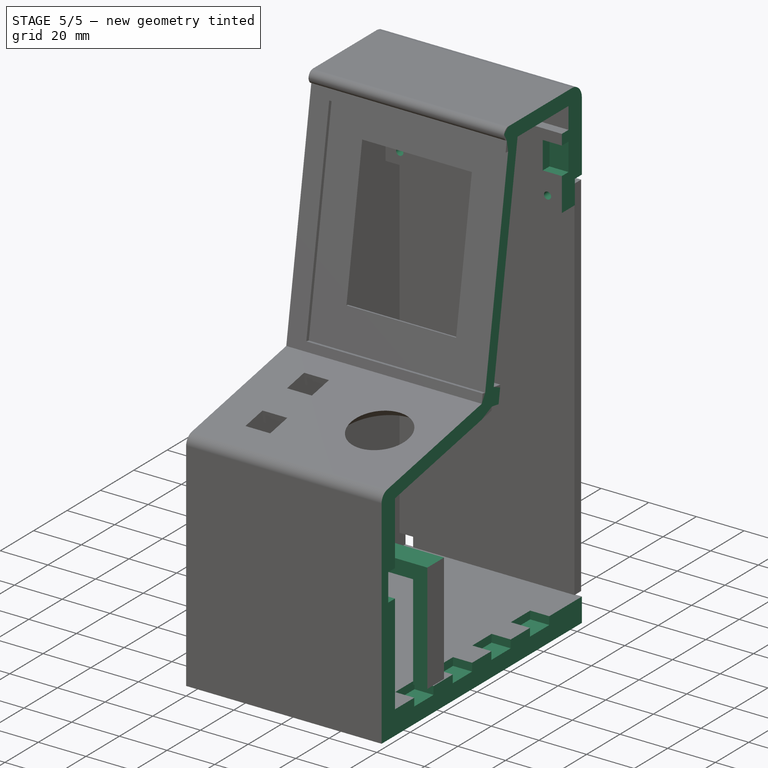
[diagram: stage 5 of 5 — iso view after this stage's code; geometry added in this stage tinted green]
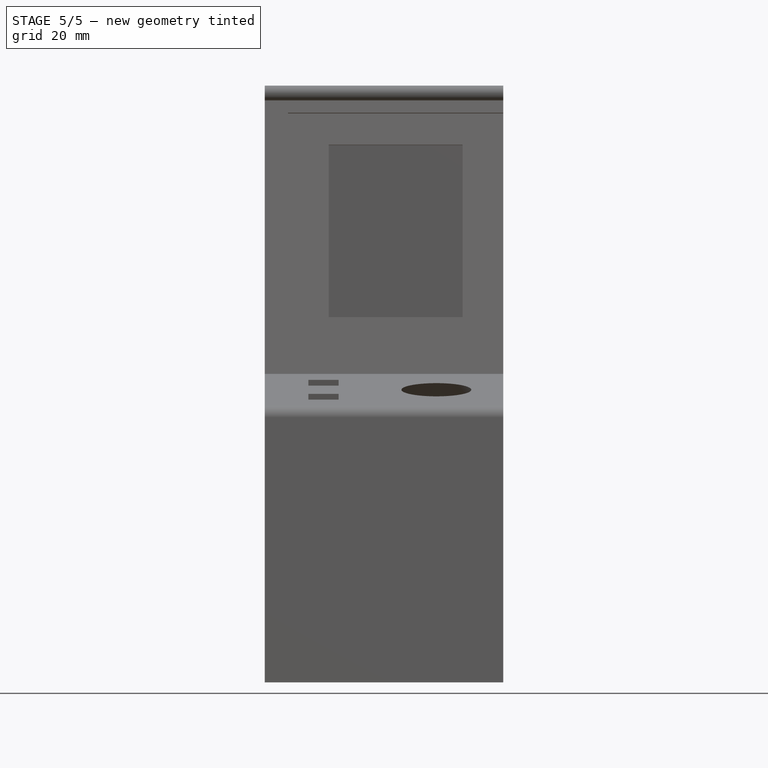
[diagram: stage 5 of 5 — front view after this stage's code; geometry added in this stage tinted green]
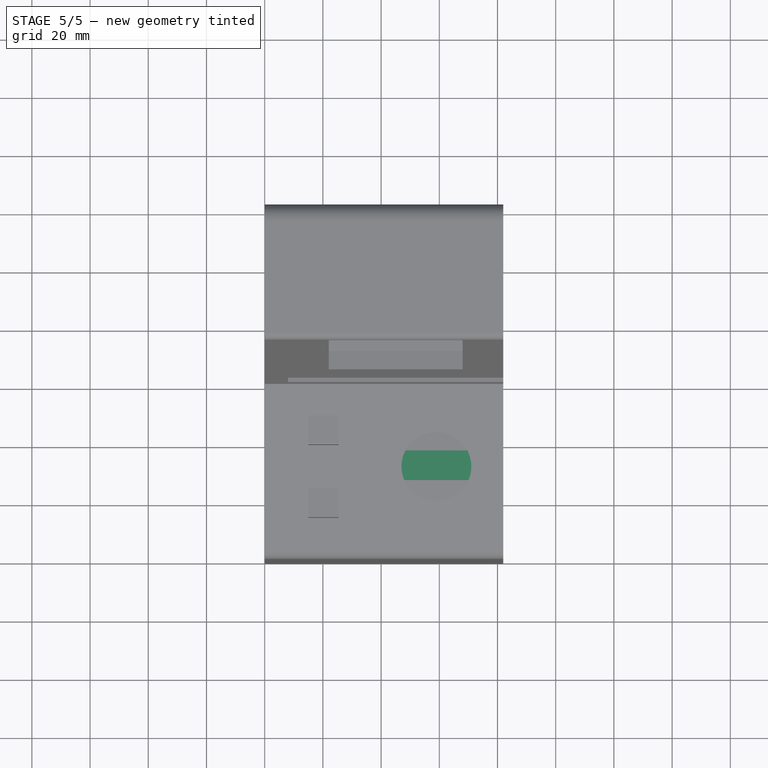
[diagram: stage 5 of 5 — top view after this stage's code; geometry added in this stage tinted green]
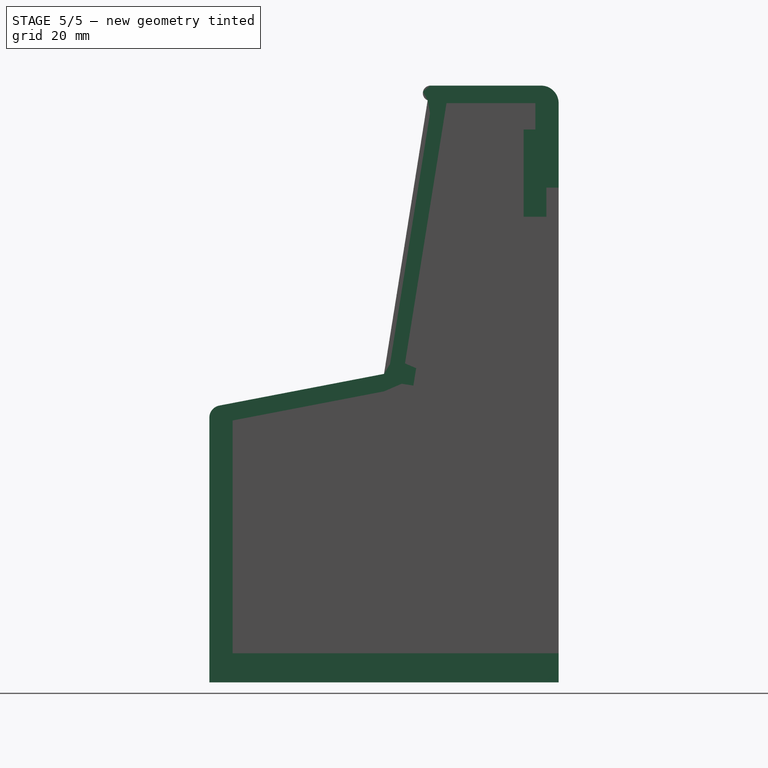
[diagram: stage 5 of 5 — right view after this stage's code; geometry added in this stage tinted green]
FEATURE [Sketcher::SketchObject] Sketch007
  FullyConstrained = true
  MapMode = 5
  Placement = pos=(0,0,0) rot=(1,0,0;1.5708rad)
  Support = -> [XZ_Plane001]
  expr: Constraints[15] = Spreadsheet.BaseHeight
  expr: Constraints[16] = Spreadsheet.BaseHeight
  expr: Constraints[18] = Spreadsheet.BaseWidth - Spreadsheet.SupportOffset * 2
  expr: Constraints[19] = Spreadsheet.WallWidth + Spreadsheet.SupportOffset
  expr: Constraints[20] = Spreadsheet.SupportBaseWidth
  expr: Constraints[21] = Spreadsheet.SupportBaseWidth
  expr: Constraints[22] = Spreadsheet.SupportHeight
  expr: Constraints[23] = Spreadsheet.SupportTopHeight
  sketch-geometry (8):
    g0: LineSegment StartX=81.6 StartY=56 StartZ=0 EndX=8.4 EndY=56 EndZ=0
    g1: LineSegment StartX=8.4 StartY=56 StartZ=0 EndX=8.4 EndY=10 EndZ=0
    g2: LineSegment StartX=81.6 StartY=56 StartZ=0 EndX=81.6 EndY=10 EndZ=0
    g3: LineSegment StartX=81.6 StartY=10 StartZ=0 EndX=75.6 EndY=10 EndZ=0
    g4: LineSegment StartX=75.6 StartY=10 StartZ=0 EndX=75.6 EndY=50 EndZ=0
    g5: LineSegment StartX=75.6 StartY=50 StartZ=0 EndX=14.4 EndY=50 EndZ=0
    g6: LineSegment StartX=14.4 StartY=50 StartZ=0 EndX=14.4 EndY=10 EndZ=0
    g7: LineSegment StartX=14.4 StartY=10 StartZ=0 EndX=8.4 EndY=10 EndZ=0
  constraints (24):
    c: Horizontal(g0)
    c: Coincident(g1,g0)
    c: Coincident(g2,g0)
    c: Vertical(g2)
    c: Coincident(g3,g2)
    c: Coincident(g4,g3)
    c: Vertical(g4)
    c: Coincident(g5,g4)
    c: Horizontal(g5)
    c: Coincident(g6,g5)
    c: Vertical(g6)
    c: Coincident(g7,g6)
    c: Coincident(g7,g1)
    c: Horizontal(g7)
    c: Horizontal(g3)
    c: Distance(g3,g-1) = 10
    c: Distance(g6,g-1) = 10
    c: Vertical(g1)
    c: DistanceX(g0,g0) = 73.2
    c: Distance(g0,g-2) = 8.4
    c: DistanceX(g3,g3) = 6
    c: DistanceX(g7,g7) = 6
    c: DistanceY(g6,g6) = 40
    c: Distance(g5,g0) = 6
FEATURE [PartDesign::Pad] Pad005
  Direction = (0,-1,-2e-16)
  Length = 92
  Length2 = -82
  Placement = pos=(0,0,0) rot=(1,0,0;1.5708rad)
  Profile = -> Sketch007
  ReferenceAxis = -> Sketch007 [N_Axis]
  Type = 4
  expr: Length = Spreadsheet.WallWidth + Spreadsheet.BaseLength - Spreadsheet.JoyStickLevel
  expr: Length2 = -(Spreadsheet.WallWidth + Spreadsheet.BaseLength - Spreadsheet.JoyStickLevel - Spreadsheet.SupportBaseLength)
  expr: TaperAngle = 0
FEATURE [Sketcher::SketchObject] Sketch026
  FullyConstrained = true
  MapMode = 5
  Placement = pos=(0,0,0) rot=(0,0.707107,0.707107;3.14159rad)
  Support = -> [Pad007]
  expr: Constraints[1] = -Spreadsheet.WallWidth
  expr: Constraints[2] = Spreadsheet.BaseWidth
  expr: Constraints[3] = Spreadsheet.BaseHeight + Spreadsheet.WallHeight * 2 - 5
  expr: Constraints[5] = Spreadsheet.BoltsDiameter
  expr: Constraints[7] = Spreadsheet.BoltsDiameter
  sketch-geometry (3):
    g0: LineSegment StartX=-82 StartY=165 StartZ=0 EndX=-8 EndY=165 EndZ=0
    g1: Circle CenterX=-76 CenterY=165 CenterZ=0 NormalX=0 NormalY=0 NormalZ=1 AngleXU=0 Radius=1.5
    g2: Circle CenterX=-14 CenterY=165 CenterZ=0 NormalX=0 NormalY=0 NormalZ=1 AngleXU=0 Radius=1.5
  constraints (10):
    c: Horizontal(g0)
    c: DistanceX(g-2,g0) = -8
    c: DistanceX(g0,g0) = 74
    c: Distance(g0,g-1) = 165
    c: PointOnObject(g1,g0)
    c: Diameter(g1) = 3
    c: PointOnObject(g2,g0)
    c: Diameter(g2) = 3
    c: Distance(g1,g0) = 6
    c: Distance(g2,g0) = 6
FEATURE [PartDesign::Pocket] Pocket010
  BaseFeature = -> Pad007
  Direction = (0,-1,2e-16)
  Length = 12
  Length2 = 5
  Profile = -> Sketch026
  ReferenceAxis = -> Sketch026 [N_Axis]
  Type = 0
  expr: Length = Spreadsheet.WallWidth * 3 / 2
FEATURE [Sketcher::SketchObject] Sketch027
  FullyConstrained = false
  MapMode = 5
  Placement = pos=(90,0,0) rot=(0.57735,0.57735,0.57735;2.0944rad)
  Support = -> [Pocket010]
  sketch-geometry (4):
    g0: LineSegment StartX=-169.523 StartY=231.296 StartZ=0 EndX=29.7827 EndY=231.296 EndZ=0
    g1: LineSegment StartX=29.7827 StartY=231.296 StartZ=0 EndX=29.7827 EndY=-18.2245 EndZ=0
    g2: LineSegment StartX=29.7827 StartY=-18.2245 StartZ=0 EndX=-169.523 EndY=-18.2245 EndZ=0
    g3: LineSegment StartX=-169.523 StartY=-18.2245 StartZ=0 EndX=-169.523 EndY=231.296 EndZ=0
  constraints (8):
    c: Coincident(g0,g1)
    c: Coincident(g1,g2)
    c: Coincident(g2,g3)
    c: Coincident(g3,g0)
    c: Horizontal(g0)
    c: Horizontal(g2)
    c: Vertical(g1)
    c: Vertical(g3)
FEATURE [PartDesign::Pocket] Pocket011
  BaseFeature = -> Pocket010
  Direction = (-1,0,0)
  Length = 8
  Length2 = 5
  Profile = -> Sketch027
  ReferenceAxis = -> Sketch027 [N_Axis]
  Type = 0
  expr: Length = Spreadsheet.WallWidth
FEATURE [Sketcher::SketchObject] Sketch028
  FullyConstrained = true
  MapMode = 5
  Placement = pos=(82,0,0) rot=(0.57735,0.57735,0.57735;2.0944rad)
  Support = -> [Pocket011]
  expr: Constraints[54] = Spreadsheet.BaseHeight * 1 / 3
  expr: Constraints[74] = Spreadsheet.BaseLength
  expr: Constraints[75] = -Spreadsheet.WallWidth
  expr: Constraints[76] = Spreadsheet.BaseLength / 9
  expr: Constraints[91] = Spreadsheet.BaseHeight * 2 / 3
  expr: Constraints[92] = -Spreadsheet.WallWidth
  expr: Constraints[94] = Spreadsheet.WallWidth / 2
  expr: Constraints[95] = Spreadsheet.BaseHeight + Spreadsheet.WallHeight * 2 + 4
  sketch-geometry (41):
    g0: LineSegment StartX=-88.8889 StartY=6.66667 StartZ=0 EndX=-100.444 EndY=6.66667 EndZ=0
    g1: LineSegment StartX=-100.444 StartY=6.66667 StartZ=0 EndX=-100.444 EndY=10 EndZ=0
    g2: LineSegment StartX=-100.444 StartY=10 StartZ=0 EndX=-88.8889 EndY=10 EndZ=0
    g3: LineSegment StartX=-88.8889 StartY=10 StartZ=0 EndX=-88.8889 EndY=6.66667 EndZ=0
    g4: LineSegment StartX=-77.3333 StartY=6.66667 StartZ=0 EndX=-65.7778 EndY=6.66667 EndZ=0
    g5: LineSegment StartX=-65.7778 StartY=6.66667 StartZ=0 EndX=-65.7778 EndY=10 EndZ=0
    g6: LineSegment StartX=-65.7778 StartY=10 StartZ=0 EndX=-77.3333 EndY=10 EndZ=0
    g7: LineSegment StartX=-77.3333 StartY=10 StartZ=0 EndX=-77.3333 EndY=6.66667 EndZ=0
    g8: LineSegment StartX=-54.2222 StartY=6.66667 StartZ=0 EndX=-42.6667 EndY=6.66667 EndZ=0
    g9: LineSegment StartX=-42.6667 StartY=6.66667 StartZ=0 EndX=-42.6667 EndY=10 EndZ=0
    g10: LineSegment StartX=-42.6667 StartY=10 StartZ=0 EndX=-54.2222 EndY=10 EndZ=0
    g11: LineSegment StartX=-54.2222 StartY=10 StartZ=0 EndX=-54.2222 EndY=6.66667 EndZ=0
    g12: LineSegment StartX=-31.1111 StartY=6.66667 StartZ=0 EndX=-19.5556 EndY=6.66667 EndZ=0
    g13: LineSegment StartX=-19.5556 StartY=6.66667 StartZ=0 EndX=-19.5556 EndY=10 EndZ=0
    g14: LineSegment StartX=-19.5556 StartY=10 StartZ=0 EndX=-31.1111 EndY=10 EndZ=0
    g15: LineSegment StartX=-31.1111 StartY=10 StartZ=0 EndX=-31.1111 EndY=6.66667 EndZ=0
    g16: LineSegment StartX=-8 StartY=185.556 StartZ=0 EndX=-12 EndY=185.556 EndZ=0
    g17: LineSegment StartX=-12 StartY=185.556 StartZ=0 EndX=-12 EndY=174 EndZ=0
    g18: LineSegment StartX=-12 StartY=174 StartZ=0 EndX=-8 EndY=174 EndZ=0
    g19: LineSegment StartX=-8 StartY=174 StartZ=0 EndX=-8 EndY=185.556 EndZ=0
    g20: LineSegment StartX=-65.7778 StartY=10 StartZ=0 EndX=-54.2222 EndY=10 EndZ=0
    g21: LineSegment StartX=-42.6667 StartY=10 StartZ=0 EndX=-31.1111 EndY=10 EndZ=0
    g22: LineSegment StartX=-100.444 StartY=6.66667 StartZ=0 EndX=-77.3333 EndY=6.66667 EndZ=0
    g23: LineSegment StartX=-65.7778 StartY=6.66667 StartZ=0 EndX=-54.2222 EndY=6.66667 EndZ=0
    g24: LineSegment StartX=-42.6667 StartY=6.66667 StartZ=0 EndX=-31.1111 EndY=6.66667 EndZ=0
    g25: LineSegment StartX=-88.8889 StartY=10 StartZ=0 EndX=-88.8889 EndY=6.66667 EndZ=0
    g26: LineSegment StartX=-88.8889 StartY=6.66667 StartZ=0 EndX=-112 EndY=6.66667 EndZ=0
    g27: LineSegment StartX=-112 StartY=6.66667 StartZ=0 EndX=-112 EndY=10 EndZ=0
    g28: LineSegment StartX=-19.5556 StartY=6.66667 StartZ=0 EndX=-8 EndY=6.66667 EndZ=0
    g29: LineSegment StartX=-8 StartY=6.66667 StartZ=0 EndX=-8 EndY=10 EndZ=0
    g30: LineSegment StartX=-8 StartY=10 StartZ=0 EndX=-19.5556 EndY=10 EndZ=0
    g31: LineSegment StartX=-19.5556 StartY=10 StartZ=0 EndX=-19.5556 EndY=6.66667 EndZ=0
    g32: LineSegment StartX=-112 StartY=10 StartZ=0 EndX=-100.444 EndY=10 EndZ=0
    g33: LineSegment StartX=-100.444 StartY=10 StartZ=0 EndX=-88.8889 EndY=10 EndZ=0
    g34: LineSegment StartX=-100.444 StartY=10 StartZ=0 EndX=-88.8889 EndY=10 EndZ=0
    g35: LineSegment StartX=-88.8889 StartY=10 StartZ=0 EndX=-77.3333 EndY=10 EndZ=0
    g36: LineSegment StartX=-112 StartY=52 StartZ=0 EndX=-112 EndY=10 EndZ=0
    g37: LineSegment StartX=-116 StartY=63.5556 StartZ=0 EndX=-112 EndY=63.5556 EndZ=0
    g38: LineSegment StartX=-112 StartY=63.5556 StartZ=0 EndX=-112 EndY=52 EndZ=0
    g39: LineSegment StartX=-112 StartY=52 StartZ=0 EndX=-116 EndY=52 EndZ=0
    g40: LineSegment StartX=-116 StartY=52 StartZ=0 EndX=-116 EndY=63.5556 EndZ=0
  constraints (110):
    c: Coincident(g0,g1)
    c: Coincident(g1,g2)
    c: Coincident(g2,g3)
    c: Coincident(g3,g0)
    c: Horizontal(g0)
    c: Horizontal(g2)
    c: Vertical(g1)
    c: Vertical(g3)
    c: Coincident(g4,g5)
    c: Coincident(g5,g6)
    c: Coincident(g6,g7)
    c: Coincident(g7,g4)
    c: Horizontal(g4)
    c: Horizontal(g6)
    c: Vertical(g5)
    c: Vertical(g7)
    c: Coincident(g8,g9)
    c: Coincident(g9,g10)
    c: Coincident(g10,g11)
    c: Coincident(g11,g8)
    c: Horizontal(g8)
    c: Horizontal(g10)
    c: Vertical(g9)
    c: Vertical(g11)
    c: Coincident(g12,g13)
    c: Coincident(g13,g14)
    c: Coincident(g14,g15)
    c: Coincident(g15,g12)
    c: Horizontal(g12)
    c: Horizontal(g14)
    c: Vertical(g13)
    c: Vertical(g15)
    c: Coincident(g16,g17)
    c: Coincident(g17,g18)
    c: Coincident(g18,g19)
    c: Coincident(g19,g16)
    c: Horizontal(g16)
    c: Horizontal(g18)
    c: Vertical(g17)
    c: Vertical(g19)
    c: Coincident(g34,g1)
    c: Coincident(g35,g6)
    c: Coincident(g20,g5)
    c: Coincident(g20,g10)
    c: Coincident(g21,g9)
    c: Coincident(g22,g0)
    c: Coincident(g22,g4)
    c: Horizontal(g22)
    c: Coincident(g23,g4)
    c: Coincident(g23,g8)
    c: Horizontal(g23)
    c: Coincident(g24,g8)
    c: Coincident(g24,g12)
    c: Horizontal(g24)
    c: DistanceY(g13,g13) = 3.33333
    c: Horizontal(g20)
    c: Coincident(g14,g21)
    c: Coincident(g33,g25)
    c: Coincident(g25,g26)
    c: Coincident(g26,g27)
    c: Coincident(g27,g32)
    c: Horizontal(g26)
    c: Vertical(g27)
    c: Coincident(g25,g0)
    c: Coincident(g28,g29)
    c: Coincident(g29,g30)
    c: Coincident(g30,g31)
    c: Coincident(g31,g28)
    c: Horizontal(g28)
    c: Horizontal(g30)
    c: Vertical(g29)
    c: Coincident(g28,g12)
    c: Coincident(g13,g30)
    c: Coincident(g33,g2)
    c: Distance(g28,g26) = 104
    c: DistanceX(g-2,g29) = -8
    c: DistanceX(g28,g28) = 11.5556
    c: Equal(g23,g4)
    c: Equal(g2,g4)
    c: Coincident(g32,g33)
    c: Horizontal(g32)
    c: Coincident(g34,g35)
    c: Horizontal(g35)
    c: Coincident(g34,g2)
    c: Coincident(g1,g32)
    c: Equal(g30,g14)
    c: Equal(g21,g30)
    c: Equal(g10,g30)
    c: Equal(g20,g30)
    c: Equal(g35,g6)
    c: Equal(g32,g2)
    c: DistanceY(g-1,g12) = 6.66667
    c: DistanceX(g-2,g16) = -8
    c: Equal(g14,g17)
    c: DistanceX(g18,g18) = 4
    c: DistanceY(g-1,g18) = 174
    c: Coincident(g36,g27)
    c: Vertical(g36)
    c: DistanceY(g36,g36) = 42
    c: Coincident(g37,g38)
    c: Coincident(g38,g39)
    c: Coincident(g39,g40)
    c: Coincident(g40,g37)
    c: Horizontal(g37)
    c: Horizontal(g39)
    c: Vertical(g38)
    c: Vertical(g40)
    c: Coincident(g38,g36)
    c: Equal(g38,g2)
    c: Equal(g37,g16)
FEATURE [PartDesign::Pocket] Pocket012
  BaseFeature = -> Pocket011
  Direction = (-1,0,0)
  Length = 8
  Length2 = 5
  Profile = -> Sketch028
  ReferenceAxis = -> Sketch028 [N_Axis]
  Type = 0
  expr: Length = Spreadsheet.WallWidth
FEATURE [Sketcher::SketchObject] Sketch029
  FullyConstrained = true
  MapMode = 5
  Placement = pos=(8,0,0) rot=(0.57735,0.57735,0.57735;2.0944rad)
  Support = -> [Pocket012]
  expr: Constraints[18] = 13
  expr: Constraints[19] = 16 + Spreadsheet.WallWidth
  expr: Constraints[20] = Spreadsheet.BaseHeight + 4
  expr: Constraints[6] = 7.8
  sketch-geometry (9):
    g0: ArcOfCircle CenterX=27.9 CenterY=17.9 CenterZ=0 NormalX=0 NormalY=0 NormalZ=1 AngleXU=0 Radius=3.9 StartAngle=1.5708 EndAngle=4.71239
    g1: ArcOfCircle CenterX=33.1 CenterY=17.9 CenterZ=0 NormalX=0 NormalY=0 NormalZ=1 AngleXU=0 Radius=3.9 StartAngle=4.71239 EndAngle=7.85398
    g2: LineSegment StartX=27.9 StartY=14 StartZ=0 EndX=33.1 EndY=14 EndZ=0
    g3: LineSegment StartX=33.1 StartY=21.8 StartZ=0 EndX=27.9 EndY=21.8 EndZ=0
    g4: GeomPoint X=24 Y=17.9 Z=0
    g5: LineSegment StartX=24 StartY=17.9 StartZ=0 EndX=27.9 EndY=21.8 EndZ=0
    g6: LineSegment StartX=24 StartY=17.9 StartZ=0 EndX=27.9 EndY=14 EndZ=0
    g7: LineSegment StartX=33.1 StartY=21.8 StartZ=0 EndX=37 EndY=17.9 EndZ=0
    g8: LineSegment StartX=37 StartY=17.9 StartZ=0 EndX=33.1 EndY=14 EndZ=0
  constraints (21):
    c: Tangent(g0,g2) = -1.5708
    c: Tangent(g2,g1) = -1.5708
    c: Tangent(g1,g3) = -1.5708
    c: Tangent(g3,g0) = -1.5708
    c: Equal(g0,g1)
    c: Horizontal(g2)
    c: Distance(g1,g2) = 7.8
    c: PointOnObject(g4,g0)
    c: Coincident(g5,g4)
    c: Coincident(g5,g0)
    c: Coincident(g6,g4)
    c: Coincident(g6,g0)
    c: Equal(g6,g5)
    c: Coincident(g7,g1)
    c: PointOnObject(g7,g1)
    c: Coincident(g8,g7)
    c: Coincident(g8,g1)
    c: Equal(g7,g8)
    c: Distance(g4,g7) = 13
    c: DistanceX(g-2,g4) = 24
    c: DistanceY(g-1,g0) = 14
FEATURE [PartDesign::Pocket] Pocket013
  BaseFeature = -> Pocket012
  Direction = (-1,0,0)
  Length = 8
  Length2 = 5
  Profile = -> Sketch029
  ReferenceAxis = -> Sketch029 [N_Axis]
  Type = 0
  expr: Length = Spreadsheet.WallWidth
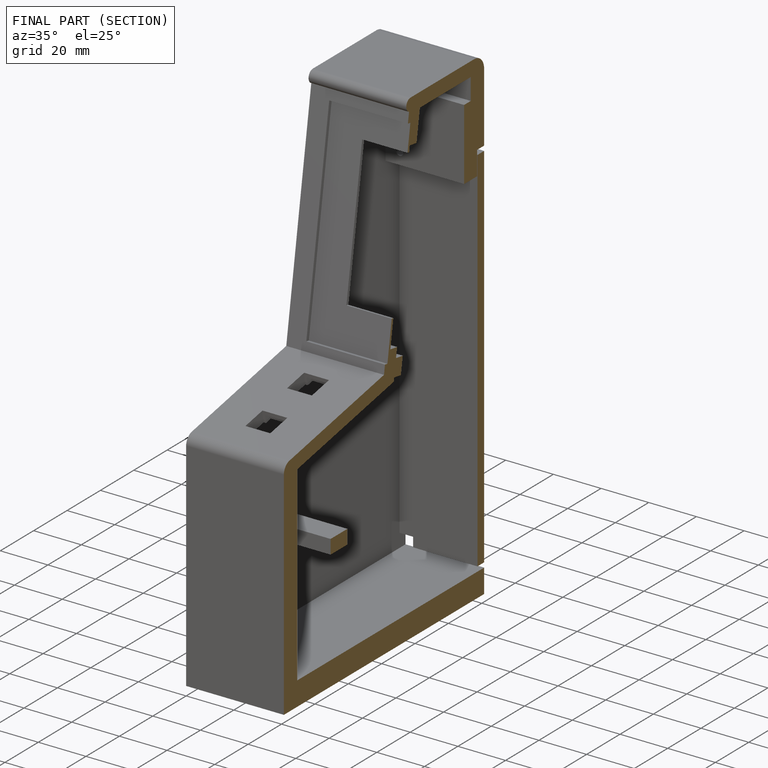
[diagram: finished part — half-section view (interior)]
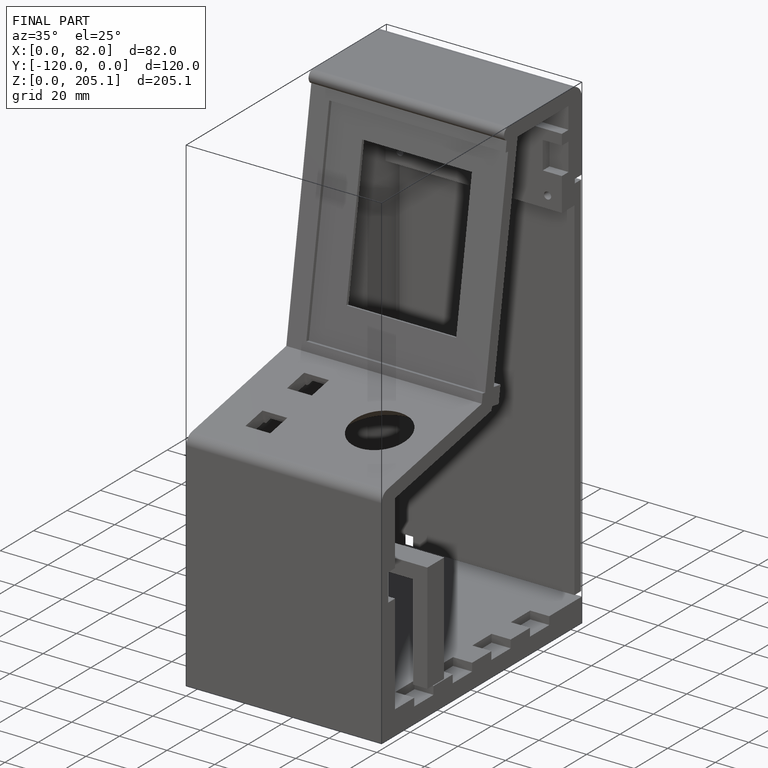
[diagram: finished part — iso view with bounding-box wireframe]
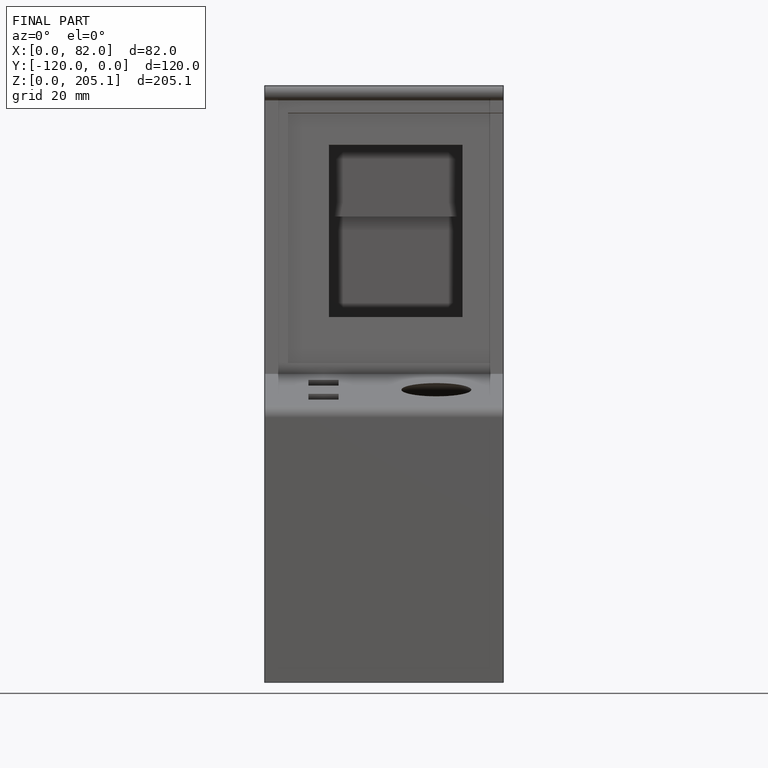
[diagram: finished part — front view with bounding-box wireframe]
